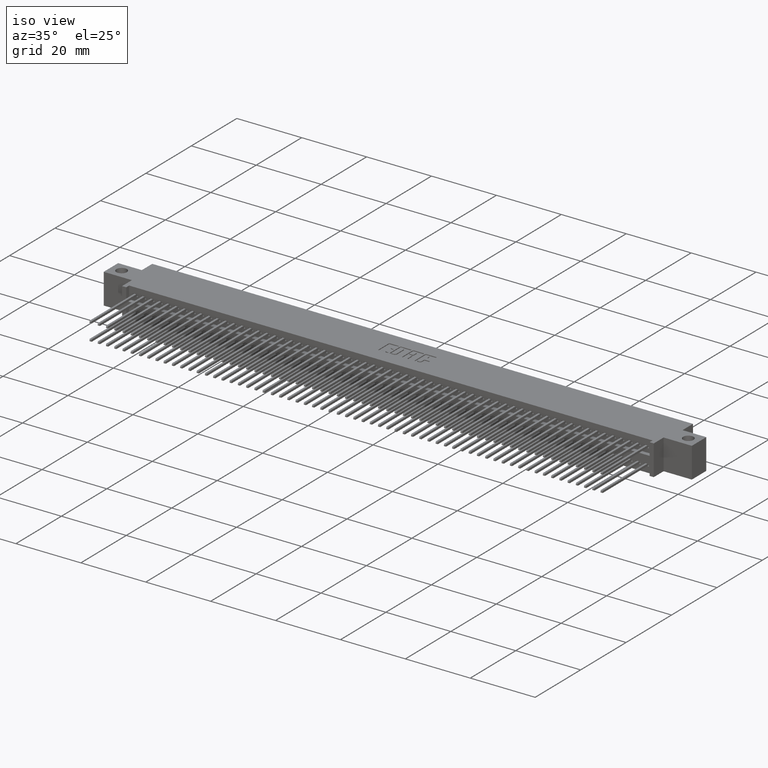
[diagram: clean part render]
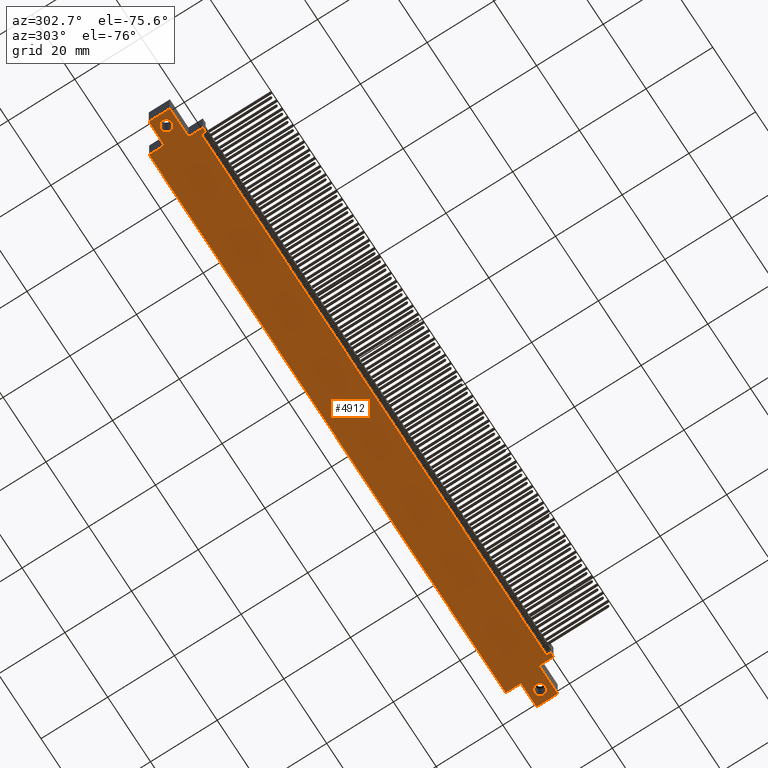
[diagram: tour spotlight — one face highlighted and labeled with its STEP entity id]
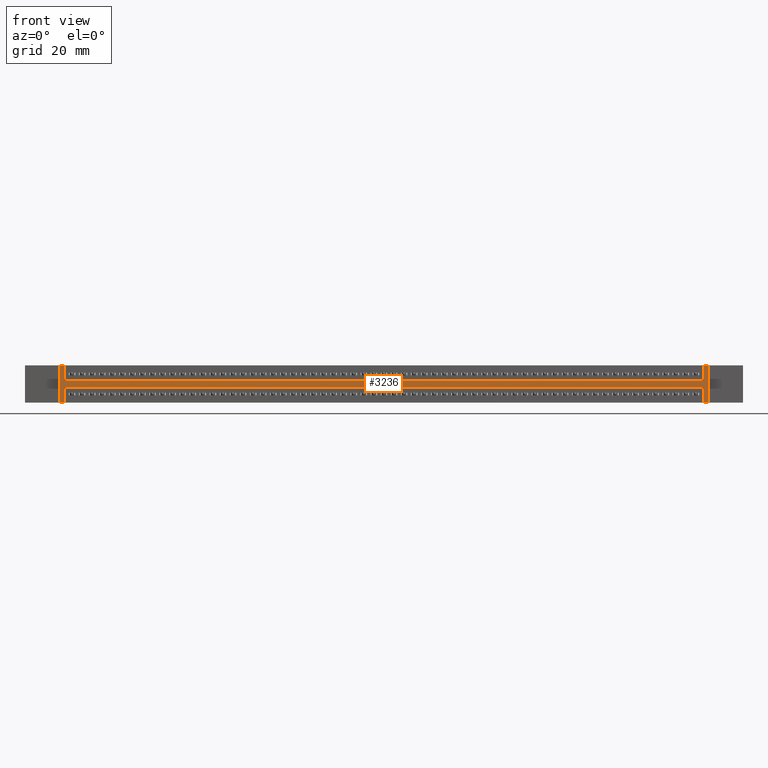
[diagram: tour spotlight — one face highlighted and labeled with its STEP entity id]
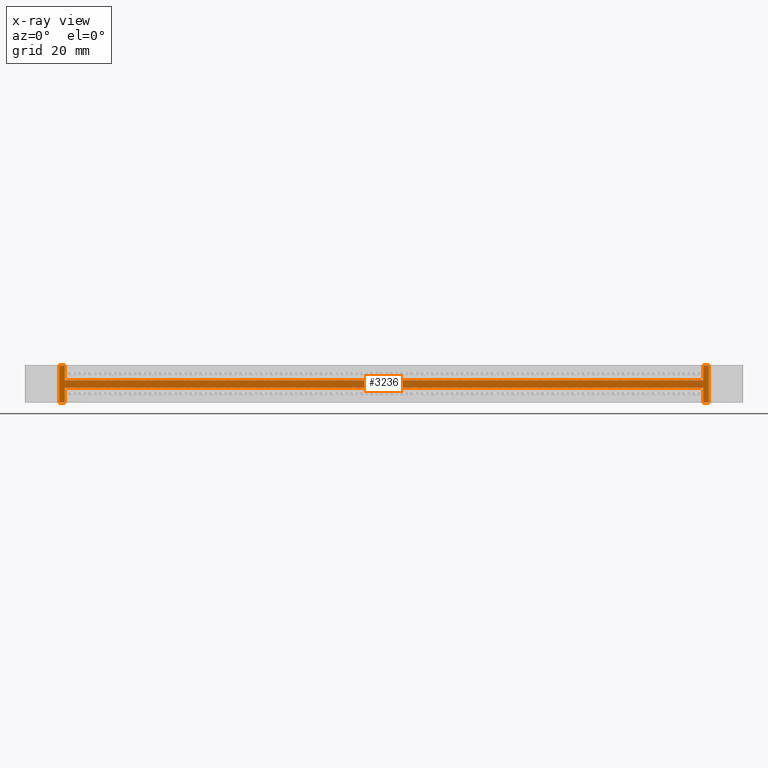
[diagram: x-ray of the same camera — body ghosted, this tour face saturated]
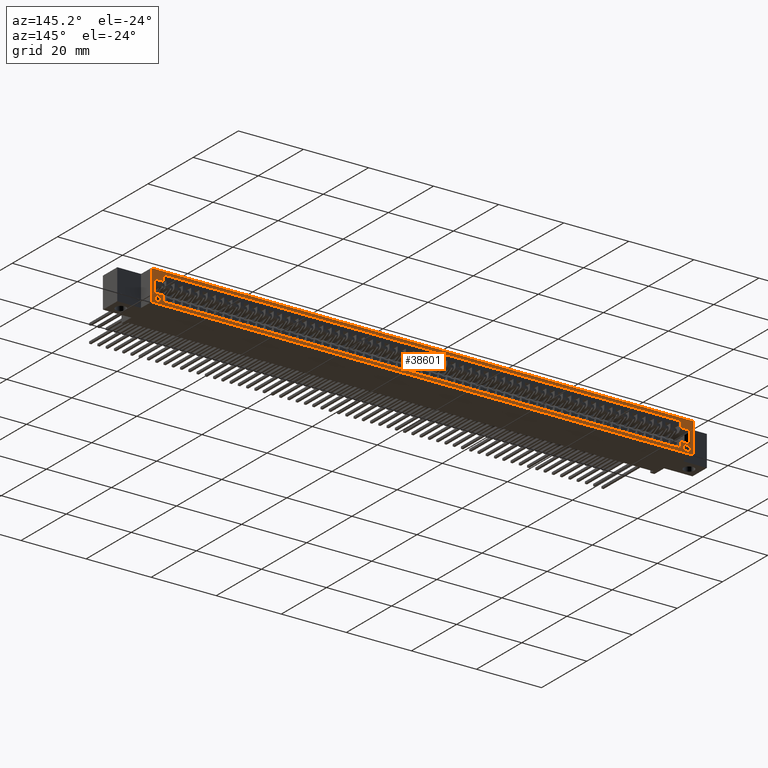
[diagram: tour spotlight — one face highlighted and labeled with its STEP entity id]
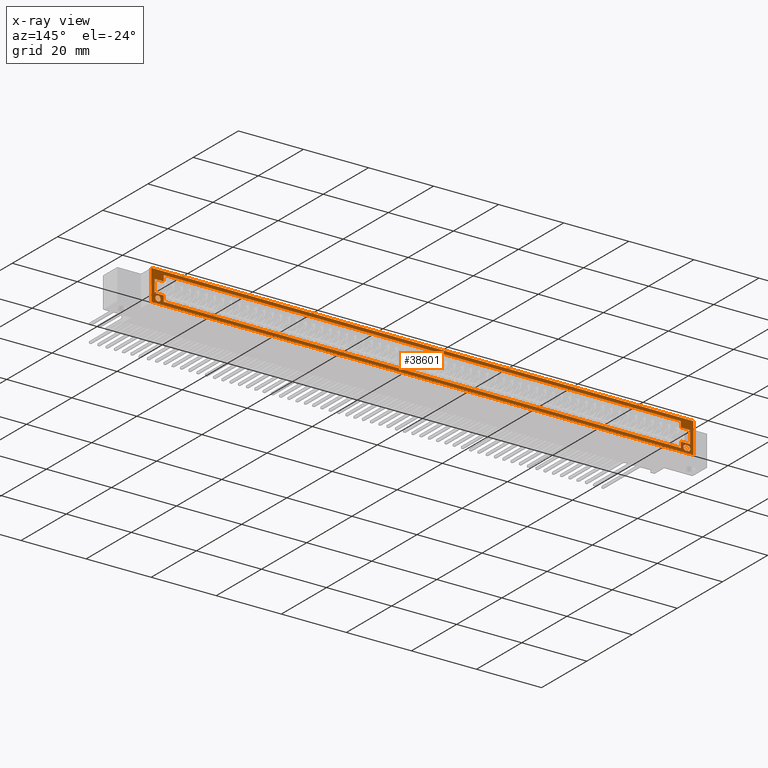
[diagram: x-ray of the same camera — body ghosted, this tour face saturated]
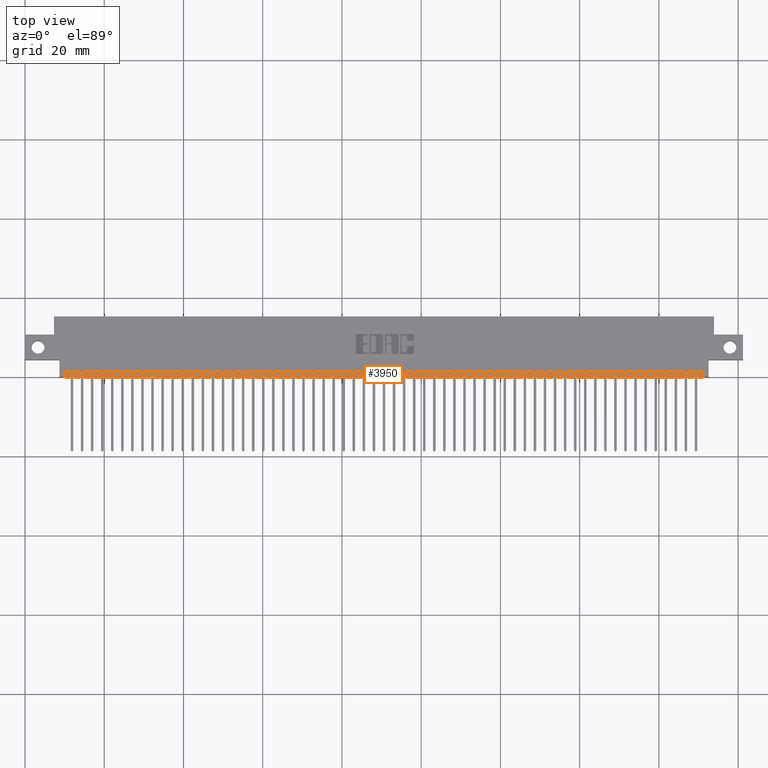
[diagram: tour spotlight — one face highlighted and labeled with its STEP entity id]
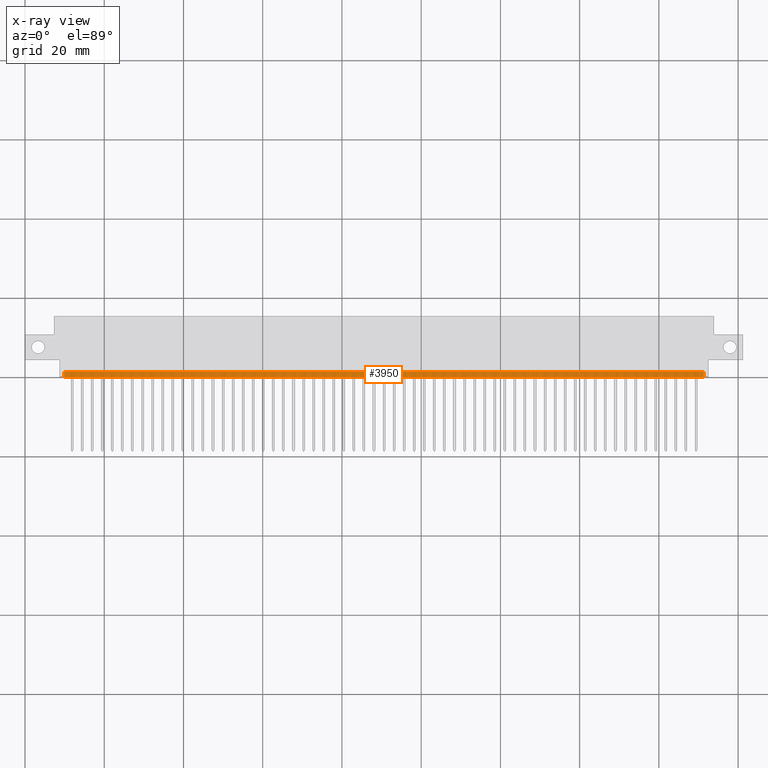
[diagram: x-ray of the same camera — body ghosted, this tour face saturated]
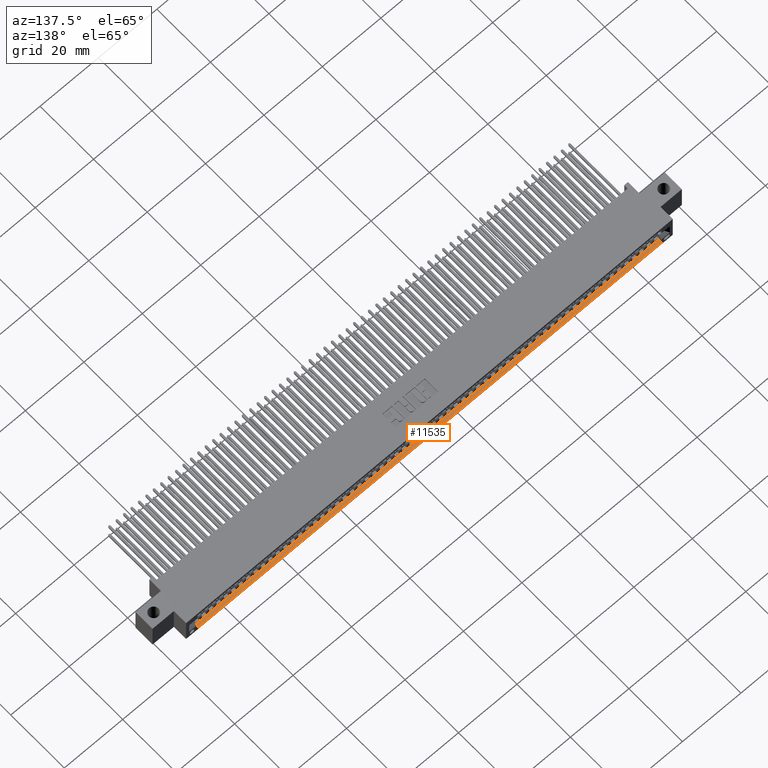
[diagram: tour spotlight — one face highlighted and labeled with its STEP entity id]
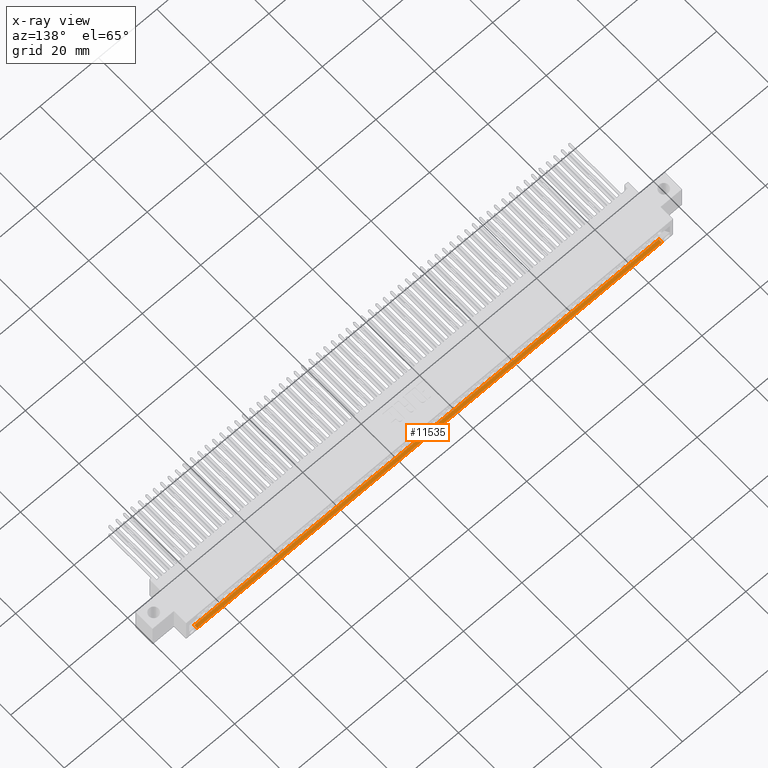
[diagram: x-ray of the same camera — body ghosted, this tour face saturated]
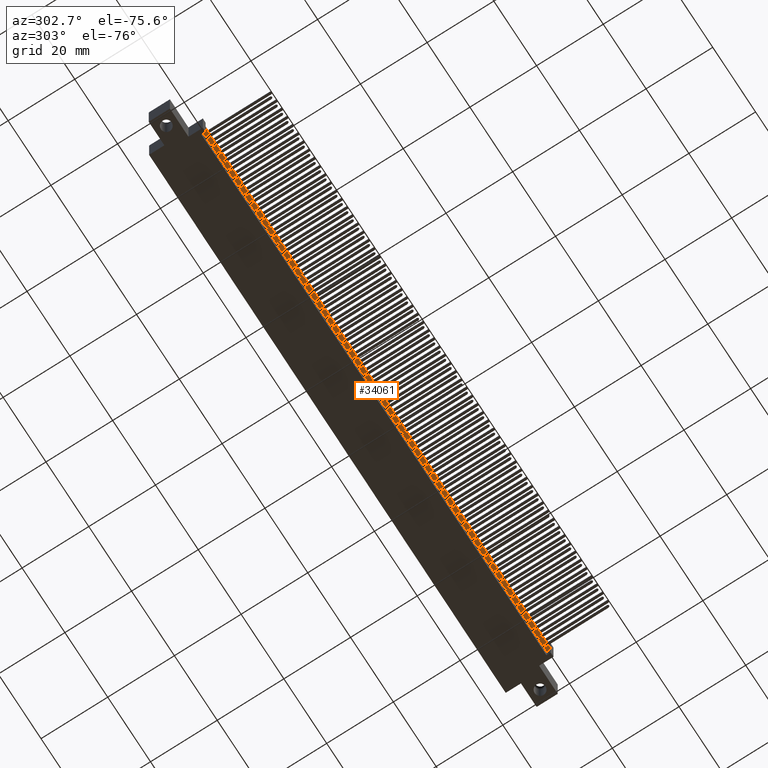
[diagram: tour spotlight — one face highlighted and labeled with its STEP entity id]
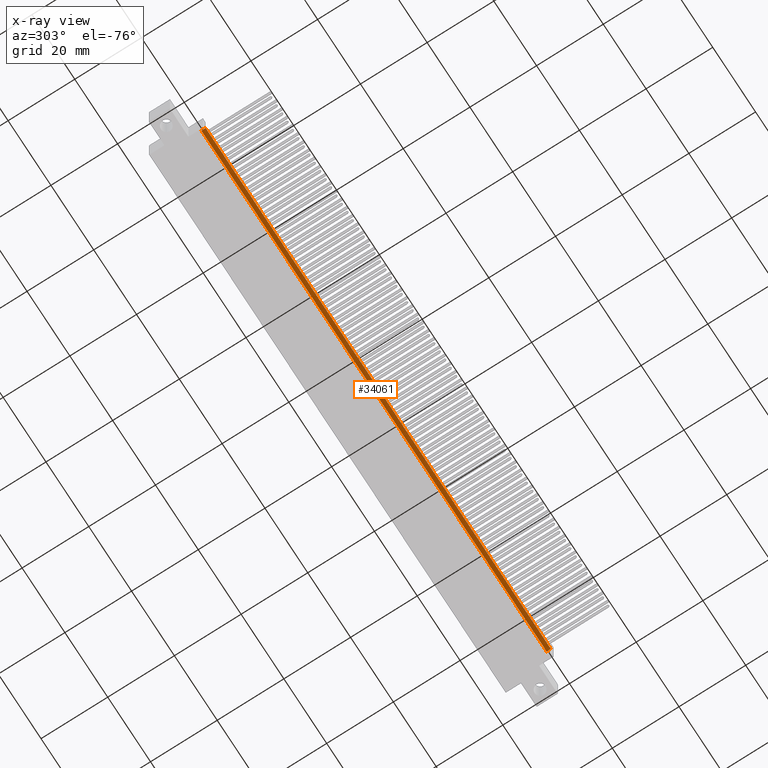
[diagram: x-ray of the same camera — body ghosted, this tour face saturated]
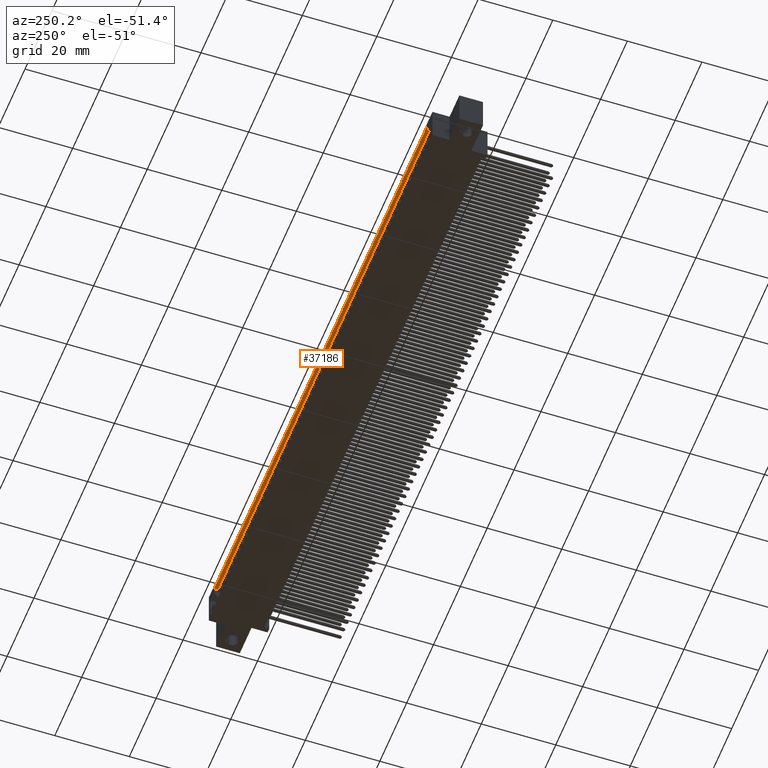
[diagram: tour spotlight — one face highlighted and labeled with its STEP entity id]
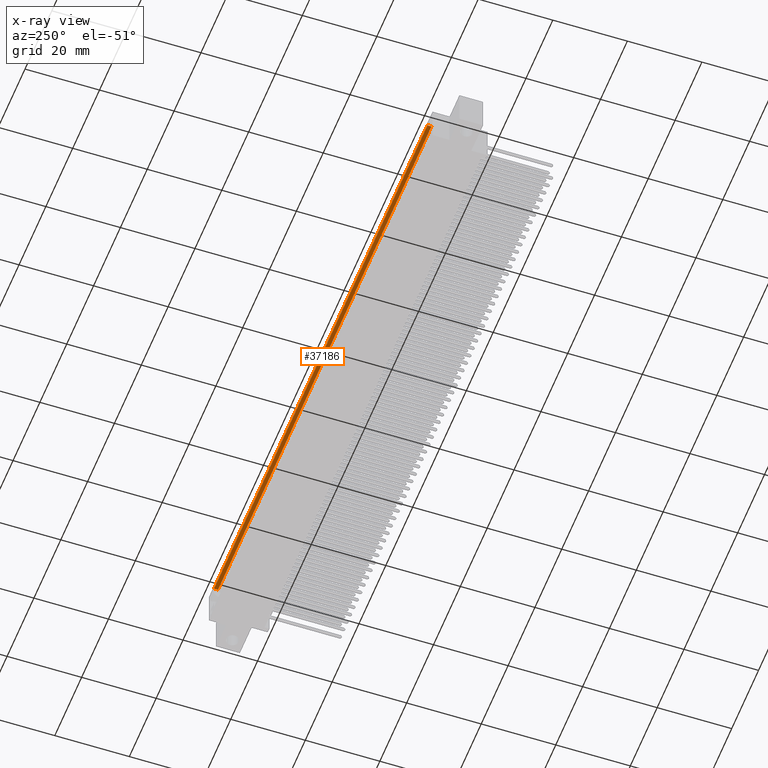
[diagram: x-ray of the same camera — body ghosted, this tour face saturated]
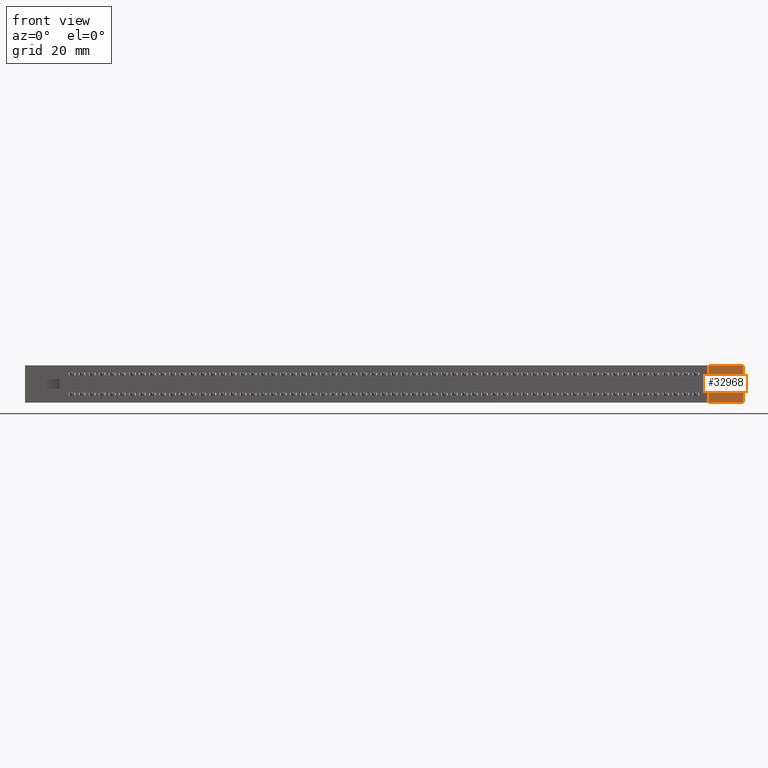
[diagram: tour spotlight — one face highlighted and labeled with its STEP entity id]
A machine part: a face-by-face anatomy tour. The part has 6430 B-rep faces; the first image is the clean iso view, then the 8 largest visible faces are spotlighted one at a time (largest first), each with its STEP entity span.

Face 1 — auxiliary view, entity #4912. In plain terms, the highlighted planar face has unit normal (-0, 0, 1).
Definition (entity closure, byte-faithful):
#61 = DIRECTION ( 'NONE',  ( -0.0000000000000000000, -1.000000000000000000, -0.0000000000000000000 ) ) ;
#454 = LINE ( 'NONE', #34408, #27525 ) ;
#608 = ORIENTED_EDGE ( 'NONE', *, *, #2161, .T. ) ;
#641 = CARTESIAN_POINT ( 'NONE',  ( 6.742500000000000600, 0.0000000000000000000, -0.3700000000000000000 ) ) ;
#691 = VECTOR ( 'NONE', #8816, 39.37007874015748100 ) ;
#926 = CARTESIAN_POINT ( 'NONE',  ( 0.0000000000000000000, 0.0000000000000000000, -0.3700000000000001600 ) ) ;
#1263 = CARTESIAN_POINT ( 'NONE',  ( 0.2874999999999999800, 0.4199999999999999800, -0.3700000000000001600 ) ) ;
#1388 = ORIENTED_EDGE ( 'NONE', *, *, #21554, .T. ) ;
#1584 = AXIS2_PLACEMENT_3D ( 'NONE', #28270, #3543, #39099 ) ;
#2161 = EDGE_CURVE ( 'NONE', #36492, #6581, #10871, .T. ) ;
#2870 = CARTESIAN_POINT ( 'NONE',  ( 6.792500000000000400, 0.1699999999999999800, -0.3699999999999992200 ) ) ;
#3543 = DIRECTION ( 'NONE',  ( 0.0000000000000000000, 0.0000000000000000000, 1.000000000000000000 ) ) ;
#4469 = ORIENTED_EDGE ( 'NONE', *, *, #6121, .F. ) ;
#4912 = ADVANCED_FACE ( 'NONE', ( #32066, #22480, #13998 ), #46418, .F. ) ;
#5058 = CARTESIAN_POINT ( 'NONE',  ( 7.135000000000000700, 0.4199999999999999800, -0.3700000000000000000 ) ) ;
#5511 = DIRECTION ( 'NONE',  ( -1.000000000000000000, 0.0000000000000000000, 0.0000000000000000000 ) ) ;
#5629 = CARTESIAN_POINT ( 'NONE',  ( 6.742500000000000600, 0.05000000000000000300, -0.3700000000000000000 ) ) ;
#6121 = EDGE_CURVE ( 'NONE', #11511, #37865, #32597, .T. ) ;
#6245 = VECTOR ( 'NONE', #43449, 39.37007874015748100 ) ;
#6323 = ORIENTED_EDGE ( 'NONE', *, *, #9205, .F. ) ;
#6537 = VERTEX_POINT ( 'NONE', #11775 ) ;
#6581 = VERTEX_POINT ( 'NONE', #12691 ) ;
#7011 = EDGE_CURVE ( 'NONE', #39623, #35433, #26796, .T. ) ;
#7390 = ORIENTED_EDGE ( 'NONE', *, *, #24820, .F. ) ;
#7426 = DIRECTION ( 'NONE',  ( -1.000000000000000000, -0.0000000000000000000, -0.0000000000000000000 ) ) ;
#7485 = VECTOR ( 'NONE', #28087, 39.37007874015748100 ) ;
#7515 = EDGE_CURVE ( 'NONE', #6537, #39623, #39874, .T. ) ;
#7752 = CARTESIAN_POINT ( 'NONE',  ( 0.3924999999999996800, 0.05000000000000000300, -0.3700000000000000000 ) ) ;
#7969 = CARTESIAN_POINT ( 'NONE',  ( 7.135000000000000700, 0.1699999999999999800, -0.3699999999999991100 ) ) ;
#8078 = LINE ( 'NONE', #33712, #38622 ) ;
#8816 = DIRECTION ( 'NONE',  ( -1.000000000000000000, 0.0000000000000000000, 3.800831991185067400E-015 ) ) ;
#9149 = ORIENTED_EDGE ( 'NONE', *, *, #15702, .T. ) ;
#9183 = AXIS2_PLACEMENT_3D ( 'NONE', #37754, #19556, #5511 ) ;
#9205 = EDGE_CURVE ( 'NONE', #6537, #11511, #17000, .T. ) ;
#10420 = DIRECTION ( 'NONE',  ( -1.000000000000000000, 0.0000000000000000000, 0.0000000000000000000 ) ) ;
#10569 = DIRECTION ( 'NONE',  ( 0.0000000000000000000, 0.0000000000000000000, 1.000000000000000000 ) ) ;
#10871 = LINE ( 'NONE', #2870, #7485 ) ;
#11511 = VERTEX_POINT ( 'NONE', #5629 ) ;
#11517 = ORIENTED_EDGE ( 'NONE', *, *, #37027, .T. ) ;
#11775 = CARTESIAN_POINT ( 'NONE',  ( 0.3924999999999996800, 0.05000000000000000300, -0.3700000000000000000 ) ) ;
#12691 = CARTESIAN_POINT ( 'NONE',  ( 6.792500000000000400, 0.0000000000000000000, -0.3699999999999992200 ) ) ;
#12926 = VECTOR ( 'NONE', #14188, 39.37007874015748100 ) ;
#13189 = EDGE_CURVE ( 'NONE', #35915, #35433, #20265, .T. ) ;
#13313 = CARTESIAN_POINT ( 'NONE',  ( 0.2874999999999999800, 0.4199999999999999800, -0.3700000000000001600 ) ) ;
#13396 = CIRCLE ( 'NONE', #9183, 0.06400000000000019600 ) ;
#13463 = DIRECTION ( 'NONE',  ( -0.0000000000000000000, 1.000000000000000000, -0.0000000000000000000 ) ) ;
#13496 = DIRECTION ( 'NONE',  ( -0.0000000000000000000, -1.000000000000000000, -0.0000000000000000000 ) ) ;
#13780 = DIRECTION ( 'NONE',  ( 1.000000000000000000, 0.0000000000000000000, 1.914399434943422300E-017 ) ) ;
#13998 = FACE_OUTER_BOUND ( 'NONE', #43941, .T. ) ;
#14188 = DIRECTION ( 'NONE',  ( -0.0000000000000000000, -1.000000000000000000, -0.0000000000000000000 ) ) ;
#14315 = ORIENTED_EDGE ( 'NONE', *, *, #13189, .F. ) ;
#14911 = DIRECTION ( 'NONE',  ( -1.000000000000000000, -0.0000000000000000000, -1.914399434943422000E-017 ) ) ;
#15182 = CARTESIAN_POINT ( 'NONE',  ( 6.941000000000001600, 0.2950000000000007600, -0.3700000000000001600 ) ) ;
#15412 = VECTOR ( 'NONE', #45840, 39.37007874015748100 ) ;
#15702 = EDGE_CURVE ( 'NONE', #29809, #28310, #16731, .T. ) ;
#16631 = EDGE_CURVE ( 'NONE', #36492, #30778, #37927, .T. ) ;
#16731 = CIRCLE ( 'NONE', #23964, 0.06400000000000019600 ) ;
#16909 = ORIENTED_EDGE ( 'NONE', *, *, #7011, .T. ) ;
#16917 = VECTOR ( 'NONE', #13496, 39.37007874015748100 ) ;
#17000 = LINE ( 'NONE', #7752, #44772 ) ;
#17381 = EDGE_CURVE ( 'NONE', #23742, #30778, #43006, .T. ) ;
#17427 = DIRECTION ( 'NONE',  ( -1.914399434943422300E-017, 0.0000000000000000000, 1.000000000000000000 ) ) ;
#17484 = ORIENTED_EDGE ( 'NONE', *, *, #36724, .F. ) ;
#18558 = EDGE_CURVE ( 'NONE', #42316, #35915, #454, .T. ) ;
#18681 = CARTESIAN_POINT ( 'NONE',  ( 0.0000000000000000000, 0.1699999999999999800, -0.3700000000000001600 ) ) ;
#19556 = DIRECTION ( 'NONE',  ( 0.0000000000000000000, 0.0000000000000000000, 1.000000000000000000 ) ) ;
#19811 = VECTOR ( 'NONE', #13463, 39.37007874015748100 ) ;
#20265 = LINE ( 'NONE', #28373, #12926 ) ;
#20479 = CARTESIAN_POINT ( 'NONE',  ( 7.069000000000001700, 0.2950000000000007600, -0.3700000000000001600 ) ) ;
#20564 = VECTOR ( 'NONE', #20826, 39.37007874015748100 ) ;
#20672 = DIRECTION ( 'NONE',  ( -1.000000000000000000, -0.0000000000000000000, -1.914399434943422000E-017 ) ) ;
#20826 = DIRECTION ( 'NONE',  ( -0.0000000000000000000, -1.000000000000000000, -0.0000000000000000000 ) ) ;
#21164 = CARTESIAN_POINT ( 'NONE',  ( 7.005000000000001700, 0.2950000000000007600, -0.3700000000000001600 ) ) ;
#21554 = EDGE_CURVE ( 'NONE', #6581, #37865, #43761, .T. ) ;
#22071 = ORIENTED_EDGE ( 'NONE', *, *, #7515, .T. ) ;
#22480 = FACE_BOUND ( 'NONE', #43000, .T. ) ;
#23742 = VERTEX_POINT ( 'NONE', #28898 ) ;
#23776 = EDGE_CURVE ( 'NONE', #28690, #35869, #33562, .T. ) ;
#23964 = AXIS2_PLACEMENT_3D ( 'NONE', #21164, #10569, #10420 ) ;
#24256 = LINE ( 'NONE', #25411, #29360 ) ;
#24400 = CARTESIAN_POINT ( 'NONE',  ( 0.1300000000000000000, 0.2949999999999999300, -0.3700000000000001600 ) ) ;
#24422 = ORIENTED_EDGE ( 'NONE', *, *, #16631, .F. ) ;
#24820 = EDGE_CURVE ( 'NONE', #41261, #44316, #34589, .T. ) ;
#25405 = ORIENTED_EDGE ( 'NONE', *, *, #17381, .T. ) ;
#25411 = CARTESIAN_POINT ( 'NONE',  ( 0.0000000000000000000, 0.4199999999999999800, -0.3700000000000001600 ) ) ;
#25462 = EDGE_CURVE ( 'NONE', #33142, #34774, #29410, .T. ) ;
#25643 = VECTOR ( 'NONE', #20672, 39.37007874015748100 ) ;
#25739 = CARTESIAN_POINT ( 'NONE',  ( 6.792500000000000400, 0.1699999999999999800, -0.3699999999999992200 ) ) ;
#26173 = CARTESIAN_POINT ( 'NONE',  ( 0.0000000000000000000, 0.4199999999999999800, -0.3700000000000001600 ) ) ;
#26572 = DIRECTION ( 'NONE',  ( -0.0000000000000000000, -1.000000000000000000, -0.0000000000000000000 ) ) ;
#26796 = LINE ( 'NONE', #926, #27941 ) ;
#27525 = VECTOR ( 'NONE', #45568, 39.37007874015748100 ) ;
#27847 = CARTESIAN_POINT ( 'NONE',  ( 7.135000000000000700, 0.5999999999999999800, -0.3700000000000000000 ) ) ;
#27941 = VECTOR ( 'NONE', #14911, 39.37007874015748100 ) ;
#28087 = DIRECTION ( 'NONE',  ( -0.0000000000000000000, -1.000000000000000000, -0.0000000000000000000 ) ) ;
#28108 = EDGE_CURVE ( 'NONE', #28310, #29809, #13396, .T. ) ;
#28270 = CARTESIAN_POINT ( 'NONE',  ( 0.1300000000000000000, 0.2949999999999999300, -0.3700000000000001600 ) ) ;
#28310 = VERTEX_POINT ( 'NONE', #20479 ) ;
#28373 = CARTESIAN_POINT ( 'NONE',  ( 0.3424999999999999700, 0.1699999999999999800, -0.3700000000000000000 ) ) ;
#28690 = VERTEX_POINT ( 'NONE', #41221 ) ;
#28898 = CARTESIAN_POINT ( 'NONE',  ( 7.135000000000000700, 0.4200000000000000400, -0.3700000000000000000 ) ) ;
#28965 = VECTOR ( 'NONE', #44755, 39.37007874015748100 ) ;
#29164 = VECTOR ( 'NONE', #61, 39.37007874015748100 ) ;
#29360 = VECTOR ( 'NONE', #7426, 39.37007874015748100 ) ;
#29410 = LINE ( 'NONE', #13313, #19811 ) ;
#29809 = VERTEX_POINT ( 'NONE', #15182 ) ;
#29973 = CARTESIAN_POINT ( 'NONE',  ( 0.0000000000000000000, 0.0000000000000000000, -0.3700000000000001600 ) ) ;
#30064 = AXIS2_PLACEMENT_3D ( 'NONE', #35253, #17427, #13780 ) ;
#30177 = CARTESIAN_POINT ( 'NONE',  ( 0.3424999999999999700, 0.1699999999999999800, -0.3700000000000000000 ) ) ;
#30778 = VERTEX_POINT ( 'NONE', #45115 ) ;
#31372 = CARTESIAN_POINT ( 'NONE',  ( 6.847500000000001000, 0.4199999999999999800, -0.3699999999999989400 ) ) ;
#31380 = DIRECTION ( 'NONE',  ( 1.000000000000000000, 0.0000000000000000000, 0.0000000000000000000 ) ) ;
#31831 = CARTESIAN_POINT ( 'NONE',  ( 6.742500000000000600, 0.05000000000000000300, -0.3700000000000000000 ) ) ;
#32066 = FACE_BOUND ( 'NONE', #37266, .T. ) ;
#32189 = CARTESIAN_POINT ( 'NONE',  ( 0.3924999999999996800, 0.05000000000000000300, -0.3700000000000000000 ) ) ;
#32310 = CARTESIAN_POINT ( 'NONE',  ( 0.3924999999999996800, 0.0000000000000000000, -0.3700000000000000000 ) ) ;
#32597 = LINE ( 'NONE', #31831, #29164 ) ;
#32876 = EDGE_CURVE ( 'NONE', #44316, #34774, #35237, .T. ) ;
#33142 = VERTEX_POINT ( 'NONE', #1263 ) ;
#33332 = AXIS2_PLACEMENT_3D ( 'NONE', #24400, #42519, #31380 ) ;
#33562 = CIRCLE ( 'NONE', #1584, 0.06399999999999997400 ) ;
#33712 = CARTESIAN_POINT ( 'NONE',  ( 0.0000000000000000000, 0.5999999999999999800, -0.3700000000000001600 ) ) ;
#34408 = CARTESIAN_POINT ( 'NONE',  ( 0.0000000000000000000, 0.1699999999999999800, -0.3700000000000001600 ) ) ;
#34589 = LINE ( 'NONE', #41574, #15412 ) ;
#34774 = VERTEX_POINT ( 'NONE', #39027 ) ;
#35122 = ORIENTED_EDGE ( 'NONE', *, *, #36634, .F. ) ;
#35189 = ORIENTED_EDGE ( 'NONE', *, *, #25462, .T. ) ;
#35237 = LINE ( 'NONE', #46059, #25643 ) ;
#35253 = CARTESIAN_POINT ( 'NONE',  ( 0.0000000000000000000, 0.5999999999999999800, -0.3700000000000001600 ) ) ;
#35433 = VERTEX_POINT ( 'NONE', #42935 ) ;
#35869 = VERTEX_POINT ( 'NONE', #37804 ) ;
#35915 = VERTEX_POINT ( 'NONE', #30177 ) ;
#36492 = VERTEX_POINT ( 'NONE', #25739 ) ;
#36634 = EDGE_CURVE ( 'NONE', #33142, #38747, #24256, .T. ) ;
#36724 = EDGE_CURVE ( 'NONE', #23742, #41261, #46448, .T. ) ;
#37027 = EDGE_CURVE ( 'NONE', #35869, #28690, #38450, .T. ) ;
#37266 = EDGE_LOOP ( 'NONE', ( #39881, #9149 ) ) ;
#37397 = ORIENTED_EDGE ( 'NONE', *, *, #18558, .F. ) ;
#37754 = CARTESIAN_POINT ( 'NONE',  ( 7.005000000000001700, 0.2950000000000007600, -0.3700000000000001600 ) ) ;
#37804 = CARTESIAN_POINT ( 'NONE',  ( 0.1939999999999999800, 0.2949999999999999300, -0.3700000000000001600 ) ) ;
#37865 = VERTEX_POINT ( 'NONE', #641 ) ;
#37927 = LINE ( 'NONE', #7969, #6245 ) ;
#38450 = CIRCLE ( 'NONE', #33332, 0.06399999999999997400 ) ;
#38622 = VECTOR ( 'NONE', #26572, 39.37007874015748100 ) ;
#38747 = VERTEX_POINT ( 'NONE', #26173 ) ;
#39027 = CARTESIAN_POINT ( 'NONE',  ( 0.2874999999999999800, 0.5999999999999999800, -0.3700000000000001600 ) ) ;
#39099 = DIRECTION ( 'NONE',  ( 1.000000000000000000, 0.0000000000000000000, 0.0000000000000000000 ) ) ;
#39329 = ORIENTED_EDGE ( 'NONE', *, *, #32876, .F. ) ;
#39623 = VERTEX_POINT ( 'NONE', #32310 ) ;
#39874 = LINE ( 'NONE', #32189, #20564 ) ;
#39881 = ORIENTED_EDGE ( 'NONE', *, *, #28108, .T. ) ;
#41221 = CARTESIAN_POINT ( 'NONE',  ( 0.06600000000000003100, 0.2949999999999999300, -0.3700000000000001600 ) ) ;
#41261 = VERTEX_POINT ( 'NONE', #31372 ) ;
#41574 = CARTESIAN_POINT ( 'NONE',  ( 6.847500000000001000, 0.4199999999999999800, -0.3699999999999989400 ) ) ;
#42092 = ORIENTED_EDGE ( 'NONE', *, *, #46562, .F. ) ;
#42316 = VERTEX_POINT ( 'NONE', #18681 ) ;
#42519 = DIRECTION ( 'NONE',  ( 0.0000000000000000000, 0.0000000000000000000, 1.000000000000000000 ) ) ;
#42935 = CARTESIAN_POINT ( 'NONE',  ( 0.3424999999999999700, 0.0000000000000000000, -0.3700000000000001600 ) ) ;
#43000 = EDGE_LOOP ( 'NONE', ( #11517, #43635 ) ) ;
#43006 = LINE ( 'NONE', #27847, #16917 ) ;
#43449 = DIRECTION ( 'NONE',  ( 1.000000000000000000, -0.0000000000000000000, 1.994049630411871400E-016 ) ) ;
#43635 = ORIENTED_EDGE ( 'NONE', *, *, #23776, .T. ) ;
#43683 = DIRECTION ( 'NONE',  ( 1.000000000000000000, 0.0000000000000000000, 0.0000000000000000000 ) ) ;
#43761 = LINE ( 'NONE', #29973, #28965 ) ;
#43941 = EDGE_LOOP ( 'NONE', ( #24422, #608, #1388, #4469, #6323, #22071, #16909, #14315, #37397, #42092, #35122, #35189, #39329, #7390, #17484, #25405 ) ) ;
#44103 = CARTESIAN_POINT ( 'NONE',  ( 6.847500000000001000, 0.5999999999999999800, -0.3699999999999989400 ) ) ;
#44316 = VERTEX_POINT ( 'NONE', #44103 ) ;
#44755 = DIRECTION ( 'NONE',  ( -1.000000000000000000, -0.0000000000000000000, -1.914399434943422000E-017 ) ) ;
#44772 = VECTOR ( 'NONE', #43683, 39.37007874015748100 ) ;
#45115 = CARTESIAN_POINT ( 'NONE',  ( 7.135000000000000700, 0.1699999999999999800, -0.3699999999999991100 ) ) ;
#45568 = DIRECTION ( 'NONE',  ( 1.000000000000000000, 0.0000000000000000000, 3.988099260823742800E-016 ) ) ;
#45840 = DIRECTION ( 'NONE',  ( -0.0000000000000000000, 1.000000000000000000, -0.0000000000000000000 ) ) ;
#46059 = CARTESIAN_POINT ( 'NONE',  ( 0.0000000000000000000, 0.5999999999999999800, -0.3700000000000001600 ) ) ;
#46418 = PLANE ( 'NONE',  #30064 ) ;
#46448 = LINE ( 'NONE', #5058, #691 ) ;
#46562 = EDGE_CURVE ( 'NONE', #38747, #42316, #8078, .T. ) ;

Face 2 — front view, entity #3236. An x-ray twin of the same camera follows (body ghosted, this face saturated) — the face is partly hidden behind the body. In plain terms, the highlighted planar face has unit normal (0, -1, 0).
Definition (entity closure, byte-faithful):
#125 = ORIENTED_EDGE ( 'NONE', *, *, #7011, .F. ) ;
#561 = LINE ( 'NONE', #4020, #46317 ) ;
#641 = CARTESIAN_POINT ( 'NONE',  ( 6.742500000000000600, 0.0000000000000000000, -0.3700000000000000000 ) ) ;
#926 = CARTESIAN_POINT ( 'NONE',  ( 0.0000000000000000000, 0.0000000000000000000, -0.3700000000000001600 ) ) ;
#1810 = VERTEX_POINT ( 'NONE', #21998 ) ;
#2277 = EDGE_CURVE ( 'NONE', #35433, #1810, #34566, .T. ) ;
#3236 = ADVANCED_FACE ( 'NONE', ( #4650 ), #12257, .T. ) ;
#3724 = EDGE_CURVE ( 'NONE', #15878, #6581, #34416, .T. ) ;
#3987 = DIRECTION ( 'NONE',  ( -0.0000000000000000000, -0.0000000000000000000, 1.000000000000000000 ) ) ;
#4020 = CARTESIAN_POINT ( 'NONE',  ( 0.3924999999999996800, 0.0000000000000000000, -0.3700000000000000000 ) ) ;
#4650 = FACE_OUTER_BOUND ( 'NONE', #13465, .T. ) ;
#4765 = EDGE_CURVE ( 'NONE', #37246, #41425, #21346, .T. ) ;
#5353 = LINE ( 'NONE', #39451, #29614 ) ;
#6007 = CARTESIAN_POINT ( 'NONE',  ( 0.3924999999999996800, 0.0000000000000000000, 0.0000000000000000000 ) ) ;
#6385 = DIRECTION ( 'NONE',  ( 0.0000000000000000000, 0.0000000000000000000, 1.000000000000000000 ) ) ;
#6581 = VERTEX_POINT ( 'NONE', #12691 ) ;
#7011 = EDGE_CURVE ( 'NONE', #39623, #35433, #26796, .T. ) ;
#7719 = CARTESIAN_POINT ( 'NONE',  ( 6.792500000000000400, 0.0000000000000000000, 0.0000000000000000000 ) ) ;
#8550 = AXIS2_PLACEMENT_3D ( 'NONE', #41857, #12397, #16218 ) ;
#8994 = LINE ( 'NONE', #13022, #11271 ) ;
#10187 = CARTESIAN_POINT ( 'NONE',  ( 0.3924999999999996800, 0.0000000000000000000, -0.2200000000000000000 ) ) ;
#10721 = EDGE_CURVE ( 'NONE', #26484, #37246, #15505, .T. ) ;
#11048 = EDGE_CURVE ( 'NONE', #41425, #15878, #31229, .T. ) ;
#11271 = VECTOR ( 'NONE', #6385, 39.37007874015748100 ) ;
#11484 = CARTESIAN_POINT ( 'NONE',  ( 6.742500000000000600, 0.0000000000000000000, -0.1499999999999999900 ) ) ;
#12071 = ORIENTED_EDGE ( 'NONE', *, *, #10721, .F. ) ;
#12257 = PLANE ( 'NONE',  #8550 ) ;
#12397 = DIRECTION ( 'NONE',  ( 0.0000000000000000000, -1.000000000000000000, 0.0000000000000000000 ) ) ;
#12533 = VECTOR ( 'NONE', #27945, 39.37007874015748100 ) ;
#12691 = CARTESIAN_POINT ( 'NONE',  ( 6.792500000000000400, 0.0000000000000000000, -0.3699999999999992200 ) ) ;
#12826 = EDGE_CURVE ( 'NONE', #1810, #23128, #27046, .T. ) ;
#13022 = CARTESIAN_POINT ( 'NONE',  ( 6.742500000000000600, 0.0000000000000000000, -0.3700000000000000000 ) ) ;
#13294 = CARTESIAN_POINT ( 'NONE',  ( 6.742500000000000600, 0.0000000000000000000, -0.2200000000000000000 ) ) ;
#13435 = CARTESIAN_POINT ( 'NONE',  ( 0.3924999999999996800, 0.0000000000000000000, -0.2200000000000000000 ) ) ;
#13465 = EDGE_LOOP ( 'NONE', ( #38569, #40827, #36310, #12071, #17931, #13510, #33112, #125, #23150, #23033, #20269, #42402 ) ) ;
#13510 = ORIENTED_EDGE ( 'NONE', *, *, #12826, .F. ) ;
#14911 = DIRECTION ( 'NONE',  ( -1.000000000000000000, -0.0000000000000000000, -1.914399434943422000E-017 ) ) ;
#15505 = LINE ( 'NONE', #26243, #32428 ) ;
#15878 = VERTEX_POINT ( 'NONE', #7719 ) ;
#16218 = DIRECTION ( 'NONE',  ( 0.0000000000000000000, -0.0000000000000000000, -1.000000000000000000 ) ) ;
#17931 = ORIENTED_EDGE ( 'NONE', *, *, #40149, .F. ) ;
#19948 = VERTEX_POINT ( 'NONE', #13294 ) ;
#20269 = ORIENTED_EDGE ( 'NONE', *, *, #26967, .F. ) ;
#20416 = VECTOR ( 'NONE', #3987, 39.37007874015748100 ) ;
#21346 = LINE ( 'NONE', #23553, #28658 ) ;
#21554 = EDGE_CURVE ( 'NONE', #6581, #37865, #43761, .T. ) ;
#21998 = CARTESIAN_POINT ( 'NONE',  ( 0.3424999999999999700, 0.0000000000000000000, 0.0000000000000000000 ) ) ;
#22080 = CARTESIAN_POINT ( 'NONE',  ( 0.3924999999999996800, 0.0000000000000000000, -0.1499999999999999900 ) ) ;
#23033 = ORIENTED_EDGE ( 'NONE', *, *, #34106, .F. ) ;
#23128 = VERTEX_POINT ( 'NONE', #6007 ) ;
#23150 = ORIENTED_EDGE ( 'NONE', *, *, #30502, .F. ) ;
#23321 = DIRECTION ( 'NONE',  ( 1.000000000000000000, 0.0000000000000000000, 0.0000000000000000000 ) ) ;
#23553 = CARTESIAN_POINT ( 'NONE',  ( 6.742500000000000600, 0.0000000000000000000, 0.0000000000000000000 ) ) ;
#24987 = VERTEX_POINT ( 'NONE', #10187 ) ;
#26243 = CARTESIAN_POINT ( 'NONE',  ( 0.3924999999999996800, 0.0000000000000000000, -0.1499999999999999900 ) ) ;
#26246 = DIRECTION ( 'NONE',  ( 0.0000000000000000000, 0.0000000000000000000, -1.000000000000000000 ) ) ;
#26484 = VERTEX_POINT ( 'NONE', #22080 ) ;
#26796 = LINE ( 'NONE', #926, #27941 ) ;
#26967 = EDGE_CURVE ( 'NONE', #37865, #19948, #8994, .T. ) ;
#27046 = LINE ( 'NONE', #34557, #33876 ) ;
#27941 = VECTOR ( 'NONE', #14911, 39.37007874015748100 ) ;
#27945 = DIRECTION ( 'NONE',  ( -1.000000000000000000, -0.0000000000000000000, -0.0000000000000000000 ) ) ;
#28658 = VECTOR ( 'NONE', #34630, 39.37007874015748100 ) ;
#28965 = VECTOR ( 'NONE', #44755, 39.37007874015748100 ) ;
#29477 = LINE ( 'NONE', #13435, #12533 ) ;
#29614 = VECTOR ( 'NONE', #35430, 39.37007874015748100 ) ;
#29973 = CARTESIAN_POINT ( 'NONE',  ( 0.0000000000000000000, 0.0000000000000000000, -0.3700000000000001600 ) ) ;
#30502 = EDGE_CURVE ( 'NONE', #24987, #39623, #561, .T. ) ;
#31229 = LINE ( 'NONE', #41426, #39248 ) ;
#32310 = CARTESIAN_POINT ( 'NONE',  ( 0.3924999999999996800, 0.0000000000000000000, -0.3700000000000000000 ) ) ;
#32428 = VECTOR ( 'NONE', #34392, 39.37007874015748100 ) ;
#33112 = ORIENTED_EDGE ( 'NONE', *, *, #2277, .F. ) ;
#33876 = VECTOR ( 'NONE', #38244, 39.37007874015748100 ) ;
#34106 = EDGE_CURVE ( 'NONE', #19948, #24987, #29477, .T. ) ;
#34392 = DIRECTION ( 'NONE',  ( 1.000000000000000000, 0.0000000000000000000, 0.0000000000000000000 ) ) ;
#34416 = LINE ( 'NONE', #44983, #43591 ) ;
#34557 = CARTESIAN_POINT ( 'NONE',  ( 0.0000000000000000000, 0.0000000000000000000, 0.0000000000000000000 ) ) ;
#34566 = LINE ( 'NONE', #39866, #20416 ) ;
#34630 = DIRECTION ( 'NONE',  ( -0.0000000000000000000, -0.0000000000000000000, 1.000000000000000000 ) ) ;
#35430 = DIRECTION ( 'NONE',  ( 0.0000000000000000000, 0.0000000000000000000, -1.000000000000000000 ) ) ;
#35433 = VERTEX_POINT ( 'NONE', #42935 ) ;
#36310 = ORIENTED_EDGE ( 'NONE', *, *, #4765, .F. ) ;
#37246 = VERTEX_POINT ( 'NONE', #11484 ) ;
#37865 = VERTEX_POINT ( 'NONE', #641 ) ;
#38244 = DIRECTION ( 'NONE',  ( 1.000000000000000000, 0.0000000000000000000, 0.0000000000000000000 ) ) ;
#38569 = ORIENTED_EDGE ( 'NONE', *, *, #3724, .F. ) ;
#39248 = VECTOR ( 'NONE', #23321, 39.37007874015748100 ) ;
#39451 = CARTESIAN_POINT ( 'NONE',  ( 0.3924999999999996800, 0.0000000000000000000, 0.0000000000000000000 ) ) ;
#39623 = VERTEX_POINT ( 'NONE', #32310 ) ;
#39866 = CARTESIAN_POINT ( 'NONE',  ( 0.3424999999999999700, 0.0000000000000000000, 0.0000000000000000000 ) ) ;
#40149 = EDGE_CURVE ( 'NONE', #23128, #26484, #5353, .T. ) ;
#40827 = ORIENTED_EDGE ( 'NONE', *, *, #11048, .F. ) ;
#41425 = VERTEX_POINT ( 'NONE', #42836 ) ;
#41426 = CARTESIAN_POINT ( 'NONE',  ( 0.0000000000000000000, 0.0000000000000000000, 0.0000000000000000000 ) ) ;
#41857 = CARTESIAN_POINT ( 'NONE',  ( 0.0000000000000000000, 0.0000000000000000000, -0.3700000000000001600 ) ) ;
#42402 = ORIENTED_EDGE ( 'NONE', *, *, #21554, .F. ) ;
#42836 = CARTESIAN_POINT ( 'NONE',  ( 6.742500000000000600, 0.0000000000000000000, 0.0000000000000000000 ) ) ;
#42935 = CARTESIAN_POINT ( 'NONE',  ( 0.3424999999999999700, 0.0000000000000000000, -0.3700000000000001600 ) ) ;
#43549 = DIRECTION ( 'NONE',  ( -0.0000000000000000000, -0.0000000000000000000, -1.000000000000000000 ) ) ;
#43591 = VECTOR ( 'NONE', #26246, 39.37007874015748100 ) ;
#43761 = LINE ( 'NONE', #29973, #28965 ) ;
#44755 = DIRECTION ( 'NONE',  ( -1.000000000000000000, -0.0000000000000000000, -1.914399434943422000E-017 ) ) ;
#44983 = CARTESIAN_POINT ( 'NONE',  ( 6.792500000000000400, 0.0000000000000000000, 7.898971854500427700E-016 ) ) ;
#46317 = VECTOR ( 'NONE', #43549, 39.37007874015748100 ) ;

Face 3 — auxiliary view, entity #38601. An x-ray twin of the same camera follows (body ghosted, this face saturated) — the face is partly hidden behind the body. In plain terms, the highlighted planar face has unit normal (0, -1, 0).
Definition (entity closure, byte-faithful):
#109 = DIRECTION ( 'NONE',  ( 0.0000000000000000000, 0.0000000000000000000, 1.000000000000000000 ) ) ;
#245 = VERTEX_POINT ( 'NONE', #17225 ) ;
#374 = EDGE_CURVE ( 'NONE', #17036, #42630, #46701, .T. ) ;
#886 = DIRECTION ( 'NONE',  ( 0.0000000000000000000, -0.0000000000000000000, -1.000000000000000000 ) ) ;
#1549 = VERTEX_POINT ( 'NONE', #13336 ) ;
#1768 = CARTESIAN_POINT ( 'NONE',  ( 0.4374999999999998900, 0.5999999999999999800, -0.1089999999999994000 ) ) ;
#1887 = CARTESIAN_POINT ( 'NONE',  ( 0.3784999999999999500, 0.5999999999999999800, -0.3130000000000000600 ) ) ;
#1955 = ORIENTED_EDGE ( 'NONE', *, *, #374, .F. ) ;
#1970 = EDGE_CURVE ( 'NONE', #13777, #245, #30608, .T. ) ;
#2279 = CARTESIAN_POINT ( 'NONE',  ( 0.0000000000000000000, 0.5999999999999999800, -0.2610000000000007300 ) ) ;
#2339 = EDGE_CURVE ( 'NONE', #25330, #20058, #24327, .T. ) ;
#2403 = ORIENTED_EDGE ( 'NONE', *, *, #31533, .F. ) ;
#2413 = EDGE_CURVE ( 'NONE', #1549, #23473, #23792, .T. ) ;
#2596 = LINE ( 'NONE', #24272, #6497 ) ;
#2903 = CARTESIAN_POINT ( 'NONE',  ( 0.3564999999999999800, 0.5999999999999999800, -0.3440000000000000800 ) ) ;
#2908 = DIRECTION ( 'NONE',  ( 0.0000000000000000000, 0.0000000000000000000, 1.000000000000000000 ) ) ;
#2914 = DIRECTION ( 'NONE',  ( 0.0000000000000000000, 0.0000000000000000000, -1.000000000000000000 ) ) ;
#2970 = VECTOR ( 'NONE', #15996, 39.37007874015748100 ) ;
#3267 = VERTEX_POINT ( 'NONE', #10018 ) ;
#3277 = CARTESIAN_POINT ( 'NONE',  ( 6.767500000000000100, 0.5999999999999999800, -0.3130000000000000600 ) ) ;
#3532 = CARTESIAN_POINT ( 'NONE',  ( 0.4375000000000010000, 0.5999999999999999800, -0.3310000000000007400 ) ) ;
#3561 = CARTESIAN_POINT ( 'NONE',  ( 0.4374999999999998900, 0.5999999999999999800, -0.2974999999999999900 ) ) ;
#3796 = CARTESIAN_POINT ( 'NONE',  ( 0.3784999999999999500, 0.5999999999999999800, -0.2820000000000000300 ) ) ;
#3824 = CARTESIAN_POINT ( 'NONE',  ( 0.3564999999999999800, 0.5999999999999999800, -0.3130000000000000600 ) ) ;
#3836 = FACE_OUTER_BOUND ( 'NONE', #29985, .T. ) ;
#4278 = LINE ( 'NONE', #7850, #46167 ) ;
#4953 = EDGE_CURVE ( 'NONE', #6611, #245, #41765, .T. ) ;
#5285 = ORIENTED_EDGE ( 'NONE', *, *, #2339, .F. ) ;
#5308 = DIRECTION ( 'NONE',  ( 0.0000000000000000000, 0.0000000000000000000, 1.000000000000000000 ) ) ;
#5679 = ORIENTED_EDGE ( 'NONE', *, *, #6785, .T. ) ;
#6332 = EDGE_CURVE ( 'NONE', #16451, #34774, #38253, .T. ) ;
#6497 = VECTOR ( 'NONE', #12951, 39.37007874015748100 ) ;
#6611 = VERTEX_POINT ( 'NONE', #27352 ) ;
#6785 = EDGE_CURVE ( 'NONE', #27642, #36163, #24573, .T. ) ;
#6848 = CARTESIAN_POINT ( 'NONE',  ( 0.4375000000000010000, 0.5999999999999999800, -0.03900000000000072900 ) ) ;
#7127 = ORIENTED_EDGE ( 'NONE', *, *, #4953, .T. ) ;
#7518 = EDGE_LOOP ( 'NONE', ( #28338, #5285, #46126, #17948, #39957, #7708, #7127, #15533, #18727, #8675, #5679, #11051 ) ) ;
#7708 = ORIENTED_EDGE ( 'NONE', *, *, #44847, .T. ) ;
#7850 = CARTESIAN_POINT ( 'NONE',  ( 6.697500000000001600, 0.5999999999999999800, -0.2974999999999998800 ) ) ;
#7888 = CARTESIAN_POINT ( 'NONE',  ( 6.767500000000000100, 0.5999999999999999800, -0.3130000000000000600 ) ) ;
#8032 = LINE ( 'NONE', #17431, #19892 ) ;
#8675 = ORIENTED_EDGE ( 'NONE', *, *, #36709, .T. ) ;
#8775 = ORIENTED_EDGE ( 'NONE', *, *, #36649, .T. ) ;
#9402 = FACE_BOUND ( 'NONE', #7518, .T. ) ;
#9793 = DIRECTION ( 'NONE',  ( 1.000000000000000000, 0.0000000000000000000, 0.0000000000000000000 ) ) ;
#9956 = EDGE_CURVE ( 'NONE', #25330, #44250, #4278, .T. ) ;
#10018 = CARTESIAN_POINT ( 'NONE',  ( 0.3784999999999999500, 0.5999999999999999800, -0.3440000000000000800 ) ) ;
#10467 = EDGE_LOOP ( 'NONE', ( #25061, #39907 ) ) ;
#10934 = AXIS2_PLACEMENT_3D ( 'NONE', #1887, #38042, #38349 ) ;
#11005 = VECTOR ( 'NONE', #5308, 39.37007874015748100 ) ;
#11051 = ORIENTED_EDGE ( 'NONE', *, *, #21120, .T. ) ;
#11056 = DIRECTION ( 'NONE',  ( 0.0000000000000000000, -1.000000000000000000, 0.0000000000000000000 ) ) ;
#11243 = CARTESIAN_POINT ( 'NONE',  ( 6.847499999999999300, 0.5999999999999999800, 0.0000000000000000000 ) ) ;
#11578 = EDGE_CURVE ( 'NONE', #37103, #3267, #36294, .T. ) ;
#12733 = VECTOR ( 'NONE', #2914, 39.37007874015748100 ) ;
#12862 = DIRECTION ( 'NONE',  ( 1.000000000000000000, 0.0000000000000000000, 0.0000000000000000000 ) ) ;
#12951 = DIRECTION ( 'NONE',  ( 0.0000000000000000000, 0.0000000000000000000, 1.000000000000000000 ) ) ;
#13336 = CARTESIAN_POINT ( 'NONE',  ( 6.767500000000000100, 0.5999999999999999800, -0.2809999999999996900 ) ) ;
#13738 = LINE ( 'NONE', #34378, #36369 ) ;
#13777 = VERTEX_POINT ( 'NONE', #6848 ) ;
#14424 = VERTEX_POINT ( 'NONE', #39814 ) ;
#14520 = CARTESIAN_POINT ( 'NONE',  ( 6.697500000000001600, 0.5999999999999999800, -0.2610000000000007300 ) ) ;
#15079 = CARTESIAN_POINT ( 'NONE',  ( 6.807500000000001000, 0.5999999999999999800, -0.2610000000000007300 ) ) ;
#15533 = ORIENTED_EDGE ( 'NONE', *, *, #1970, .F. ) ;
#15557 = LINE ( 'NONE', #41216, #11005 ) ;
#15839 = CARTESIAN_POINT ( 'NONE',  ( 0.4375000000000010000, 0.5999999999999999800, -0.03900000000000072900 ) ) ;
#15948 = DIRECTION ( 'NONE',  ( -1.000000000000000000, 0.0000000000000000000, 0.0000000000000000000 ) ) ;
#15996 = DIRECTION ( 'NONE',  ( 1.000000000000000000, 0.0000000000000000000, -5.454968038466980200E-018 ) ) ;
#16380 = VERTEX_POINT ( 'NONE', #16702 ) ;
#16451 = VERTEX_POINT ( 'NONE', #24689 ) ;
#16702 = CARTESIAN_POINT ( 'NONE',  ( 6.807500000000001000, 0.5999999999999999800, -0.1089999999999994000 ) ) ;
#16955 = CARTESIAN_POINT ( 'NONE',  ( 0.3274999999999991800, 0.5999999999999999800, -0.3700000000000001600 ) ) ;
#17036 = VERTEX_POINT ( 'NONE', #2903 ) ;
#17157 = DIRECTION ( 'NONE',  ( 0.0000000000000000000, 1.000000000000000000, 0.0000000000000000000 ) ) ;
#17211 = LINE ( 'NONE', #2279, #37003 ) ;
#17225 = CARTESIAN_POINT ( 'NONE',  ( 6.697500000000000700, 0.5999999999999999800, -0.03900000000000076300 ) ) ;
#17431 = CARTESIAN_POINT ( 'NONE',  ( 6.847499999999999300, 0.5999999999999999800, 0.0000000000000000000 ) ) ;
#17794 = EDGE_CURVE ( 'NONE', #44316, #45498, #8032, .T. ) ;
#17948 = ORIENTED_EDGE ( 'NONE', *, *, #35323, .T. ) ;
#18629 = DIRECTION ( 'NONE',  ( 0.0000000000000000000, 1.000000000000000000, 0.0000000000000000000 ) ) ;
#18727 = ORIENTED_EDGE ( 'NONE', *, *, #32306, .F. ) ;
#18944 = VECTOR ( 'NONE', #32252, 39.37007874015748100 ) ;
#19337 = EDGE_CURVE ( 'NONE', #23473, #1549, #33690, .T. ) ;
#19767 = LINE ( 'NONE', #26188, #40208 ) ;
#19892 = VECTOR ( 'NONE', #27645, 39.37007874015748100 ) ;
#20058 = VERTEX_POINT ( 'NONE', #3532 ) ;
#20672 = DIRECTION ( 'NONE',  ( -1.000000000000000000, -0.0000000000000000000, -1.914399434943422000E-017 ) ) ;
#20711 = AXIS2_PLACEMENT_3D ( 'NONE', #3824, #43348, #109 ) ;
#20790 = DIRECTION ( 'NONE',  ( -1.000000000000000000, -0.0000000000000000000, -0.0000000000000000000 ) ) ;
#21120 = EDGE_CURVE ( 'NONE', #36163, #14424, #17211, .T. ) ;
#22693 = VECTOR ( 'NONE', #43827, 39.37007874015748100 ) ;
#22974 = FACE_BOUND ( 'NONE', #25170, .T. ) ;
#23145 = EDGE_CURVE ( 'NONE', #38092, #16380, #2596, .T. ) ;
#23434 = LINE ( 'NONE', #3561, #18944 ) ;
#23442 = ORIENTED_EDGE ( 'NONE', *, *, #17794, .F. ) ;
#23473 = VERTEX_POINT ( 'NONE', #43820 ) ;
#23569 = VERTEX_POINT ( 'NONE', #1768 ) ;
#23792 = CIRCLE ( 'NONE', #38858, 0.03200000000000033400 ) ;
#24272 = CARTESIAN_POINT ( 'NONE',  ( 6.807500000000001000, 0.5999999999999999800, -0.3700000000000001600 ) ) ;
#24315 = CARTESIAN_POINT ( 'NONE',  ( 6.697500000000001600, 0.5999999999999999800, -0.2974999999999998800 ) ) ;
#24327 = LINE ( 'NONE', #25725, #22693 ) ;
#24573 = LINE ( 'NONE', #16955, #12733 ) ;
#24689 = CARTESIAN_POINT ( 'NONE',  ( 0.2874999999999999800, 0.5999999999999999800, 0.0000000000000000000 ) ) ;
#25061 = ORIENTED_EDGE ( 'NONE', *, *, #2413, .F. ) ;
#25170 = EDGE_LOOP ( 'NONE', ( #31823, #1955, #2403, #37415 ) ) ;
#25330 = VERTEX_POINT ( 'NONE', #45318 ) ;
#25643 = VECTOR ( 'NONE', #20672, 39.37007874015748100 ) ;
#25725 = CARTESIAN_POINT ( 'NONE',  ( 0.4375000000000010000, 0.5999999999999999800, -0.3310000000000007400 ) ) ;
#26188 = CARTESIAN_POINT ( 'NONE',  ( 0.0000000000000000000, 0.5999999999999999800, 0.0000000000000000000 ) ) ;
#26551 = LINE ( 'NONE', #41133, #31620 ) ;
#27352 = CARTESIAN_POINT ( 'NONE',  ( 6.697500000000001600, 0.5999999999999999800, -0.1089999999999994000 ) ) ;
#27642 = VERTEX_POINT ( 'NONE', #31265 ) ;
#27645 = DIRECTION ( 'NONE',  ( -2.953349182339752700E-015, -0.0000000000000000000, 1.000000000000000000 ) ) ;
#28165 = CARTESIAN_POINT ( 'NONE',  ( 0.0000000000000000000, 0.5999999999999999800, -0.1089999999999994000 ) ) ;
#28338 = ORIENTED_EDGE ( 'NONE', *, *, #39890, .F. ) ;
#28581 = VECTOR ( 'NONE', #36920, 39.37007874015748100 ) ;
#29504 = PLANE ( 'NONE',  #29733 ) ;
#29626 = ORIENTED_EDGE ( 'NONE', *, *, #32876, .T. ) ;
#29733 = AXIS2_PLACEMENT_3D ( 'NONE', #32680, #11056, #886 ) ;
#29985 = EDGE_LOOP ( 'NONE', ( #8775, #23442, #29626, #46246 ) ) ;
#30608 = LINE ( 'NONE', #15839, #2970 ) ;
#30743 = DIRECTION ( 'NONE',  ( 1.000000000000000000, 0.0000000000000000000, 3.104372720073026700E-015 ) ) ;
#31265 = CARTESIAN_POINT ( 'NONE',  ( 0.3274999999999991800, 0.5999999999999999800, -0.1089999999999994000 ) ) ;
#31473 = VECTOR ( 'NONE', #2908, 39.37007874015748100 ) ;
#31533 = EDGE_CURVE ( 'NONE', #3267, #17036, #40550, .T. ) ;
#31620 = VECTOR ( 'NONE', #15948, 39.37007874015748100 ) ;
#31699 = VECTOR ( 'NONE', #12862, 39.37007874015748100 ) ;
#31823 = ORIENTED_EDGE ( 'NONE', *, *, #46002, .F. ) ;
#32252 = DIRECTION ( 'NONE',  ( 0.0000000000000000000, 0.0000000000000000000, 1.000000000000000000 ) ) ;
#32306 = EDGE_CURVE ( 'NONE', #23569, #13777, #23434, .T. ) ;
#32680 = CARTESIAN_POINT ( 'NONE',  ( 0.0000000000000000000, 0.5999999999999999800, -0.3700000000000001600 ) ) ;
#32876 = EDGE_CURVE ( 'NONE', #44316, #34774, #35237, .T. ) ;
#32966 = DIRECTION ( 'NONE',  ( 0.0000000000000000000, 0.0000000000000000000, 1.000000000000000000 ) ) ;
#33461 = DIRECTION ( 'NONE',  ( 0.0000000000000000000, 0.0000000000000000000, 1.000000000000000000 ) ) ;
#33635 = DIRECTION ( 'NONE',  ( 1.000000000000000000, 0.0000000000000000000, 0.0000000000000000000 ) ) ;
#33690 = CIRCLE ( 'NONE', #34989, 0.03200000000000033400 ) ;
#34378 = CARTESIAN_POINT ( 'NONE',  ( 0.3564999999999999300, 0.5999999999999999800, -0.2820000000000000800 ) ) ;
#34487 = CARTESIAN_POINT ( 'NONE',  ( 0.0000000000000000000, 0.5999999999999999800, -0.2610000000000007300 ) ) ;
#34774 = VERTEX_POINT ( 'NONE', #39027 ) ;
#34989 = AXIS2_PLACEMENT_3D ( 'NONE', #3277, #17157, #46307 ) ;
#35007 = CARTESIAN_POINT ( 'NONE',  ( 0.3564999999999999300, 0.5999999999999999800, -0.2820000000000000800 ) ) ;
#35137 = DIRECTION ( 'NONE',  ( -1.000000000000000000, 0.0000000000000000000, 0.0000000000000000000 ) ) ;
#35237 = LINE ( 'NONE', #46059, #25643 ) ;
#35323 = EDGE_CURVE ( 'NONE', #44250, #38092, #40837, .T. ) ;
#36163 = VERTEX_POINT ( 'NONE', #40132 ) ;
#36294 = CIRCLE ( 'NONE', #10934, 0.03100000000000002400 ) ;
#36369 = VECTOR ( 'NONE', #30743, 39.37007874015748100 ) ;
#36460 = LINE ( 'NONE', #28165, #38205 ) ;
#36649 = EDGE_CURVE ( 'NONE', #16451, #45498, #19767, .T. ) ;
#36709 = EDGE_CURVE ( 'NONE', #23569, #27642, #26551, .T. ) ;
#36920 = DIRECTION ( 'NONE',  ( 0.0000000000000000000, 0.0000000000000000000, -1.000000000000000000 ) ) ;
#37003 = VECTOR ( 'NONE', #9793, 39.37007874015748100 ) ;
#37103 = VERTEX_POINT ( 'NONE', #3796 ) ;
#37173 = FACE_BOUND ( 'NONE', #10467, .T. ) ;
#37415 = ORIENTED_EDGE ( 'NONE', *, *, #11578, .F. ) ;
#38042 = DIRECTION ( 'NONE',  ( 0.0000000000000000000, 1.000000000000000000, 0.0000000000000000000 ) ) ;
#38092 = VERTEX_POINT ( 'NONE', #15079 ) ;
#38205 = VECTOR ( 'NONE', #35137, 39.37007874015748100 ) ;
#38253 = LINE ( 'NONE', #40285, #28581 ) ;
#38349 = DIRECTION ( 'NONE',  ( 0.0000000000000000000, 0.0000000000000000000, 1.000000000000000000 ) ) ;
#38601 = ADVANCED_FACE ( 'NONE', ( #37173, #22974, #3836, #9402 ), #29504, .F. ) ;
#38858 = AXIS2_PLACEMENT_3D ( 'NONE', #7888, #18629, #33461 ) ;
#39027 = CARTESIAN_POINT ( 'NONE',  ( 0.2874999999999999800, 0.5999999999999999800, -0.3700000000000001600 ) ) ;
#39814 = CARTESIAN_POINT ( 'NONE',  ( 0.4374999999999998900, 0.5999999999999999800, -0.2610000000000007300 ) ) ;
#39890 = EDGE_CURVE ( 'NONE', #20058, #14424, #15557, .T. ) ;
#39907 = ORIENTED_EDGE ( 'NONE', *, *, #19337, .F. ) ;
#39957 = ORIENTED_EDGE ( 'NONE', *, *, #23145, .T. ) ;
#40132 = CARTESIAN_POINT ( 'NONE',  ( 0.3274999999999991800, 0.5999999999999999800, -0.2610000000000007300 ) ) ;
#40208 = VECTOR ( 'NONE', #33635, 39.37007874015748100 ) ;
#40285 = CARTESIAN_POINT ( 'NONE',  ( 0.2874999999999999800, 0.5999999999999999800, 0.0000000000000000000 ) ) ;
#40550 = LINE ( 'NONE', #46011, #43951 ) ;
#40837 = LINE ( 'NONE', #34487, #31699 ) ;
#41133 = CARTESIAN_POINT ( 'NONE',  ( 0.0000000000000000000, 0.5999999999999999800, -0.1089999999999994000 ) ) ;
#41216 = CARTESIAN_POINT ( 'NONE',  ( 0.4374999999999998900, 0.5999999999999999800, -0.2974999999999999900 ) ) ;
#41765 = LINE ( 'NONE', #24315, #31473 ) ;
#42630 = VERTEX_POINT ( 'NONE', #35007 ) ;
#43348 = DIRECTION ( 'NONE',  ( 0.0000000000000000000, 1.000000000000000000, 0.0000000000000000000 ) ) ;
#43820 = CARTESIAN_POINT ( 'NONE',  ( 6.767500000000000100, 0.5999999999999999800, -0.3450000000000003600 ) ) ;
#43827 = DIRECTION ( 'NONE',  ( -1.000000000000000000, -0.0000000000000000000, 1.090993607693396000E-017 ) ) ;
#43951 = VECTOR ( 'NONE', #20790, 39.37007874015748100 ) ;
#44103 = CARTESIAN_POINT ( 'NONE',  ( 6.847500000000001000, 0.5999999999999999800, -0.3699999999999989400 ) ) ;
#44250 = VERTEX_POINT ( 'NONE', #14520 ) ;
#44316 = VERTEX_POINT ( 'NONE', #44103 ) ;
#44847 = EDGE_CURVE ( 'NONE', #16380, #6611, #36460, .T. ) ;
#45318 = CARTESIAN_POINT ( 'NONE',  ( 6.697500000000000700, 0.5999999999999999800, -0.3310000000000007900 ) ) ;
#45498 = VERTEX_POINT ( 'NONE', #11243 ) ;
#46002 = EDGE_CURVE ( 'NONE', #42630, #37103, #13738, .T. ) ;
#46011 = CARTESIAN_POINT ( 'NONE',  ( 0.3564999999999999800, 0.5999999999999999800, -0.3440000000000000800 ) ) ;
#46059 = CARTESIAN_POINT ( 'NONE',  ( 0.0000000000000000000, 0.5999999999999999800, -0.3700000000000001600 ) ) ;
#46126 = ORIENTED_EDGE ( 'NONE', *, *, #9956, .T. ) ;
#46167 = VECTOR ( 'NONE', #32966, 39.37007874015748100 ) ;
#46246 = ORIENTED_EDGE ( 'NONE', *, *, #6332, .F. ) ;
#46307 = DIRECTION ( 'NONE',  ( 0.0000000000000000000, 0.0000000000000000000, 1.000000000000000000 ) ) ;
#46701 = CIRCLE ( 'NONE', #20711, 0.03099999999999998900 ) ;

Face 4 — top view, entity #3950. An x-ray twin of the same camera follows (body ghosted, this face saturated) — the face is partly hidden behind the body. In plain terms, the highlighted planar face has unit normal (0, 0, -1).
Definition (entity closure, byte-faithful):
#968 = VERTEX_POINT ( 'NONE', #24210 ) ;
#2281 = DIRECTION ( 'NONE',  ( 0.0000000000000000000, 0.0000000000000000000, -1.000000000000000000 ) ) ;
#3336 = ORIENTED_EDGE ( 'NONE', *, *, #44183, .F. ) ;
#3950 = ADVANCED_FACE ( 'NONE', ( #11229 ), #38288, .F. ) ;
#4343 = VECTOR ( 'NONE', #21306, 39.37007874015748100 ) ;
#7239 = CARTESIAN_POINT ( 'NONE',  ( 0.3924999999999996800, 0.05000000000000000300, -0.1499999999999999900 ) ) ;
#10721 = EDGE_CURVE ( 'NONE', #26484, #37246, #15505, .T. ) ;
#11229 = FACE_OUTER_BOUND ( 'NONE', #11872, .T. ) ;
#11484 = CARTESIAN_POINT ( 'NONE',  ( 6.742500000000000600, 0.0000000000000000000, -0.1499999999999999900 ) ) ;
#11872 = EDGE_LOOP ( 'NONE', ( #36731, #37089, #3336, #11873 ) ) ;
#11873 = ORIENTED_EDGE ( 'NONE', *, *, #21351, .T. ) ;
#12310 = CARTESIAN_POINT ( 'NONE',  ( 6.742500000000000600, 0.05000000000000000300, -0.1499999999999999900 ) ) ;
#13760 = VECTOR ( 'NONE', #44131, 39.37007874015748100 ) ;
#15030 = CARTESIAN_POINT ( 'NONE',  ( 0.3924999999999996800, 0.05000000000000000300, -0.1499999999999999900 ) ) ;
#15505 = LINE ( 'NONE', #26243, #32428 ) ;
#16185 = LINE ( 'NONE', #7239, #4343 ) ;
#17273 = EDGE_CURVE ( 'NONE', #18396, #37246, #34438, .T. ) ;
#18396 = VERTEX_POINT ( 'NONE', #12310 ) ;
#19982 = DIRECTION ( 'NONE',  ( -0.0000000000000000000, -1.000000000000000000, -0.0000000000000000000 ) ) ;
#20372 = DIRECTION ( 'NONE',  ( -1.000000000000000000, 0.0000000000000000000, -0.0000000000000000000 ) ) ;
#21306 = DIRECTION ( 'NONE',  ( 1.000000000000000000, 0.0000000000000000000, 0.0000000000000000000 ) ) ;
#21351 = EDGE_CURVE ( 'NONE', #968, #26484, #35230, .T. ) ;
#21891 = CARTESIAN_POINT ( 'NONE',  ( 6.742500000000000600, 0.05000000000000000300, -0.1499999999999999900 ) ) ;
#22080 = CARTESIAN_POINT ( 'NONE',  ( 0.3924999999999996800, 0.0000000000000000000, -0.1499999999999999900 ) ) ;
#24210 = CARTESIAN_POINT ( 'NONE',  ( 0.3924999999999996800, 0.05000000000000000300, -0.1499999999999999900 ) ) ;
#24577 = AXIS2_PLACEMENT_3D ( 'NONE', #30490, #2281, #20372 ) ;
#26243 = CARTESIAN_POINT ( 'NONE',  ( 0.3924999999999996800, 0.0000000000000000000, -0.1499999999999999900 ) ) ;
#26484 = VERTEX_POINT ( 'NONE', #22080 ) ;
#30490 = CARTESIAN_POINT ( 'NONE',  ( 0.3924999999999996800, 0.05000000000000000300, -0.1499999999999999900 ) ) ;
#32428 = VECTOR ( 'NONE', #34392, 39.37007874015748100 ) ;
#34392 = DIRECTION ( 'NONE',  ( 1.000000000000000000, 0.0000000000000000000, 0.0000000000000000000 ) ) ;
#34438 = LINE ( 'NONE', #21891, #37288 ) ;
#35230 = LINE ( 'NONE', #15030, #13760 ) ;
#36731 = ORIENTED_EDGE ( 'NONE', *, *, #10721, .T. ) ;
#37089 = ORIENTED_EDGE ( 'NONE', *, *, #17273, .F. ) ;
#37246 = VERTEX_POINT ( 'NONE', #11484 ) ;
#37288 = VECTOR ( 'NONE', #19982, 39.37007874015748100 ) ;
#38288 = PLANE ( 'NONE',  #24577 ) ;
#44131 = DIRECTION ( 'NONE',  ( -0.0000000000000000000, -1.000000000000000000, -0.0000000000000000000 ) ) ;
#44183 = EDGE_CURVE ( 'NONE', #968, #18396, #16185, .T. ) ;

Face 5 — auxiliary view, entity #11535. An x-ray twin of the same camera follows (body ghosted, this face saturated) — the face is partly hidden behind the body. In plain terms, the highlighted planar face has unit normal (-0, 0, -1).
Definition (entity closure, byte-faithful):
#2339 = EDGE_CURVE ( 'NONE', #25330, #20058, #24327, .T. ) ;
#3264 = VECTOR ( 'NONE', #36176, 39.37007874015748100 ) ;
#3532 = CARTESIAN_POINT ( 'NONE',  ( 0.4375000000000010000, 0.5999999999999999800, -0.3310000000000007400 ) ) ;
#4019 = EDGE_CURVE ( 'NONE', #23542, #25330, #6138, .T. ) ;
#4669 = ORIENTED_EDGE ( 'NONE', *, *, #2339, .T. ) ;
#5334 = DIRECTION ( 'NONE',  ( -1.090993607693396000E-017, 0.0000000000000000000, -1.000000000000000000 ) ) ;
#5652 = EDGE_CURVE ( 'NONE', #23542, #24312, #22443, .T. ) ;
#5934 = CARTESIAN_POINT ( 'NONE',  ( 0.4375000000000010000, -5.708806523262067500, -0.3310000000000007400 ) ) ;
#6138 = LINE ( 'NONE', #30807, #36136 ) ;
#8873 = LINE ( 'NONE', #29845, #26349 ) ;
#9797 = DIRECTION ( 'NONE',  ( -0.0000000000000000000, 1.000000000000000000, -0.0000000000000000000 ) ) ;
#11535 = ADVANCED_FACE ( 'NONE', ( #14818 ), #27068, .F. ) ;
#14818 = FACE_OUTER_BOUND ( 'NONE', #15088, .T. ) ;
#15088 = EDGE_LOOP ( 'NONE', ( #15378, #4669, #19881, #22565 ) ) ;
#15378 = ORIENTED_EDGE ( 'NONE', *, *, #4019, .T. ) ;
#15670 = DIRECTION ( 'NONE',  ( -0.0000000000000000000, 1.000000000000000000, -0.0000000000000000000 ) ) ;
#17862 = CARTESIAN_POINT ( 'NONE',  ( 0.4375000000000010000, 0.5579999999999999400, -0.3310000000000007400 ) ) ;
#19869 = CARTESIAN_POINT ( 'NONE',  ( 6.697500000000000700, 0.5579999999999999400, -0.3310000000000007900 ) ) ;
#19881 = ORIENTED_EDGE ( 'NONE', *, *, #43823, .F. ) ;
#20058 = VERTEX_POINT ( 'NONE', #3532 ) ;
#22443 = LINE ( 'NONE', #25568, #3264 ) ;
#22565 = ORIENTED_EDGE ( 'NONE', *, *, #5652, .F. ) ;
#22693 = VECTOR ( 'NONE', #43827, 39.37007874015748100 ) ;
#23542 = VERTEX_POINT ( 'NONE', #19869 ) ;
#24312 = VERTEX_POINT ( 'NONE', #17862 ) ;
#24327 = LINE ( 'NONE', #25725, #22693 ) ;
#25330 = VERTEX_POINT ( 'NONE', #45318 ) ;
#25438 = AXIS2_PLACEMENT_3D ( 'NONE', #5934, #5334, #30553 ) ;
#25568 = CARTESIAN_POINT ( 'NONE',  ( 0.4375000000000010000, 0.5579999999999999400, -0.3310000000000007400 ) ) ;
#25725 = CARTESIAN_POINT ( 'NONE',  ( 0.4375000000000010000, 0.5999999999999999800, -0.3310000000000007400 ) ) ;
#26349 = VECTOR ( 'NONE', #15670, 39.37007874015748100 ) ;
#27068 = PLANE ( 'NONE',  #25438 ) ;
#29845 = CARTESIAN_POINT ( 'NONE',  ( 0.4375000000000010000, -5.708806523262067500, -0.3310000000000007400 ) ) ;
#30553 = DIRECTION ( 'NONE',  ( -1.000000000000000000, 0.0000000000000000000, 1.090993607693396000E-017 ) ) ;
#30807 = CARTESIAN_POINT ( 'NONE',  ( 6.697500000000000700, -5.708806523262067500, -0.3310000000000007900 ) ) ;
#36136 = VECTOR ( 'NONE', #9797, 39.37007874015748100 ) ;
#36176 = DIRECTION ( 'NONE',  ( -1.000000000000000000, -2.041389519368318200E-032, 1.090993607693396000E-017 ) ) ;
#43823 = EDGE_CURVE ( 'NONE', #24312, #20058, #8873, .T. ) ;
#43827 = DIRECTION ( 'NONE',  ( -1.000000000000000000, -0.0000000000000000000, 1.090993607693396000E-017 ) ) ;
#45318 = CARTESIAN_POINT ( 'NONE',  ( 6.697500000000000700, 0.5999999999999999800, -0.3310000000000007900 ) ) ;

Face 6 — auxiliary view, entity #34061. An x-ray twin of the same camera follows (body ghosted, this face saturated) — the face is partly hidden behind the body. In plain terms, the highlighted planar face has unit normal (0, 0, 1).
Definition (entity closure, byte-faithful):
#115 = VECTOR ( 'NONE', #13343, 39.37007874015748100 ) ;
#327 = DIRECTION ( 'NONE',  ( -1.000000000000000000, -0.0000000000000000000, -0.0000000000000000000 ) ) ;
#2880 = CARTESIAN_POINT ( 'NONE',  ( 0.3924999999999996800, 0.05000000000000000300, -0.2200000000000000000 ) ) ;
#3247 = CARTESIAN_POINT ( 'NONE',  ( 0.3924999999999996800, 0.05000000000000000300, -0.2200000000000000000 ) ) ;
#3325 = EDGE_CURVE ( 'NONE', #31498, #24987, #45310, .T. ) ;
#6882 = EDGE_CURVE ( 'NONE', #42434, #31498, #38760, .T. ) ;
#7209 = EDGE_CURVE ( 'NONE', #42434, #19948, #14999, .T. ) ;
#8539 = CARTESIAN_POINT ( 'NONE',  ( 6.742500000000000600, 0.05000000000000000300, -0.2200000000000000000 ) ) ;
#9008 = DIRECTION ( 'NONE',  ( -0.0000000000000000000, -1.000000000000000000, -0.0000000000000000000 ) ) ;
#10187 = CARTESIAN_POINT ( 'NONE',  ( 0.3924999999999996800, 0.0000000000000000000, -0.2200000000000000000 ) ) ;
#12533 = VECTOR ( 'NONE', #27945, 39.37007874015748100 ) ;
#13222 = CARTESIAN_POINT ( 'NONE',  ( 0.3924999999999996800, 0.05000000000000000300, -0.2200000000000000000 ) ) ;
#13288 = ORIENTED_EDGE ( 'NONE', *, *, #3325, .F. ) ;
#13294 = CARTESIAN_POINT ( 'NONE',  ( 6.742500000000000600, 0.0000000000000000000, -0.2200000000000000000 ) ) ;
#13343 = DIRECTION ( 'NONE',  ( -0.0000000000000000000, -1.000000000000000000, -0.0000000000000000000 ) ) ;
#13435 = CARTESIAN_POINT ( 'NONE',  ( 0.3924999999999996800, 0.0000000000000000000, -0.2200000000000000000 ) ) ;
#13828 = VECTOR ( 'NONE', #327, 39.37007874015748100 ) ;
#14999 = LINE ( 'NONE', #19287, #23402 ) ;
#16627 = DIRECTION ( 'NONE',  ( 1.000000000000000000, 0.0000000000000000000, -0.0000000000000000000 ) ) ;
#17141 = CARTESIAN_POINT ( 'NONE',  ( 0.3924999999999996800, 0.05000000000000000300, -0.2200000000000000000 ) ) ;
#17626 = FACE_OUTER_BOUND ( 'NONE', #27808, .T. ) ;
#19287 = CARTESIAN_POINT ( 'NONE',  ( 6.742500000000000600, 0.05000000000000000300, -0.2200000000000000000 ) ) ;
#19948 = VERTEX_POINT ( 'NONE', #13294 ) ;
#23402 = VECTOR ( 'NONE', #9008, 39.37007874015748100 ) ;
#24452 = PLANE ( 'NONE',  #35700 ) ;
#24987 = VERTEX_POINT ( 'NONE', #10187 ) ;
#27808 = EDGE_LOOP ( 'NONE', ( #31760, #13288, #42761, #35472 ) ) ;
#27945 = DIRECTION ( 'NONE',  ( -1.000000000000000000, -0.0000000000000000000, -0.0000000000000000000 ) ) ;
#29477 = LINE ( 'NONE', #13435, #12533 ) ;
#31498 = VERTEX_POINT ( 'NONE', #13222 ) ;
#31760 = ORIENTED_EDGE ( 'NONE', *, *, #34106, .T. ) ;
#34061 = ADVANCED_FACE ( 'NONE', ( #17626 ), #24452, .F. ) ;
#34106 = EDGE_CURVE ( 'NONE', #19948, #24987, #29477, .T. ) ;
#35472 = ORIENTED_EDGE ( 'NONE', *, *, #7209, .T. ) ;
#35700 = AXIS2_PLACEMENT_3D ( 'NONE', #2880, #38606, #16627 ) ;
#38606 = DIRECTION ( 'NONE',  ( 0.0000000000000000000, 0.0000000000000000000, 1.000000000000000000 ) ) ;
#38760 = LINE ( 'NONE', #3247, #13828 ) ;
#42434 = VERTEX_POINT ( 'NONE', #8539 ) ;
#42761 = ORIENTED_EDGE ( 'NONE', *, *, #6882, .F. ) ;
#45310 = LINE ( 'NONE', #17141, #115 ) ;

Face 7 — auxiliary view, entity #37186. An x-ray twin of the same camera follows (body ghosted, this face saturated) — the face is partly hidden behind the body. In plain terms, the highlighted planar face has unit normal (0, 0, 1).
Definition (entity closure, byte-faithful):
#245 = VERTEX_POINT ( 'NONE', #17225 ) ;
#1056 = AXIS2_PLACEMENT_3D ( 'NONE', #25361, #39520, #43320 ) ;
#1970 = EDGE_CURVE ( 'NONE', #13777, #245, #30608, .T. ) ;
#2970 = VECTOR ( 'NONE', #15996, 39.37007874015748100 ) ;
#4016 = ORIENTED_EDGE ( 'NONE', *, *, #36140, .F. ) ;
#5648 = FACE_OUTER_BOUND ( 'NONE', #10338, .T. ) ;
#6848 = CARTESIAN_POINT ( 'NONE',  ( 0.4375000000000010000, 0.5999999999999999800, -0.03900000000000072900 ) ) ;
#7539 = PLANE ( 'NONE',  #1056 ) ;
#9419 = EDGE_CURVE ( 'NONE', #9926, #245, #40243, .T. ) ;
#9926 = VERTEX_POINT ( 'NONE', #40148 ) ;
#10338 = EDGE_LOOP ( 'NONE', ( #33944, #20493, #35679, #4016 ) ) ;
#10677 = CARTESIAN_POINT ( 'NONE',  ( 0.4375000000000010000, 0.5579999999999999400, -0.03900000000000072900 ) ) ;
#11813 = CARTESIAN_POINT ( 'NONE',  ( 0.4375000000000010000, -5.708806523262067500, -0.03900000000000072900 ) ) ;
#13777 = VERTEX_POINT ( 'NONE', #6848 ) ;
#15839 = CARTESIAN_POINT ( 'NONE',  ( 0.4375000000000010000, 0.5999999999999999800, -0.03900000000000072900 ) ) ;
#15996 = DIRECTION ( 'NONE',  ( 1.000000000000000000, 0.0000000000000000000, -5.454968038466980200E-018 ) ) ;
#16029 = EDGE_CURVE ( 'NONE', #27990, #13777, #18412, .T. ) ;
#17225 = CARTESIAN_POINT ( 'NONE',  ( 6.697500000000000700, 0.5999999999999999800, -0.03900000000000076300 ) ) ;
#18412 = LINE ( 'NONE', #11813, #45048 ) ;
#18581 = DIRECTION ( 'NONE',  ( 1.000000000000000000, 1.020694759684159100E-032, -5.454968038466980200E-018 ) ) ;
#20493 = ORIENTED_EDGE ( 'NONE', *, *, #1970, .T. ) ;
#21502 = LINE ( 'NONE', #10677, #37988 ) ;
#25361 = CARTESIAN_POINT ( 'NONE',  ( 0.4375000000000010000, -5.708806523262067500, -0.03900000000000072900 ) ) ;
#25730 = CARTESIAN_POINT ( 'NONE',  ( 0.4375000000000010000, 0.5579999999999999400, -0.03900000000000072900 ) ) ;
#27990 = VERTEX_POINT ( 'NONE', #25730 ) ;
#29489 = DIRECTION ( 'NONE',  ( -0.0000000000000000000, 1.000000000000000000, -0.0000000000000000000 ) ) ;
#30528 = VECTOR ( 'NONE', #33935, 39.37007874015748100 ) ;
#30608 = LINE ( 'NONE', #15839, #2970 ) ;
#33935 = DIRECTION ( 'NONE',  ( -0.0000000000000000000, 1.000000000000000000, -0.0000000000000000000 ) ) ;
#33944 = ORIENTED_EDGE ( 'NONE', *, *, #16029, .T. ) ;
#35679 = ORIENTED_EDGE ( 'NONE', *, *, #9419, .F. ) ;
#36140 = EDGE_CURVE ( 'NONE', #27990, #9926, #21502, .T. ) ;
#37186 = ADVANCED_FACE ( 'NONE', ( #5648 ), #7539, .F. ) ;
#37289 = CARTESIAN_POINT ( 'NONE',  ( 6.697500000000000700, -5.708806523262067500, -0.03900000000000076300 ) ) ;
#37988 = VECTOR ( 'NONE', #18581, 39.37007874015748100 ) ;
#39520 = DIRECTION ( 'NONE',  ( 5.454968038466980200E-018, 0.0000000000000000000, 1.000000000000000000 ) ) ;
#40148 = CARTESIAN_POINT ( 'NONE',  ( 6.697500000000000700, 0.5579999999999999400, -0.03900000000000076300 ) ) ;
#40243 = LINE ( 'NONE', #37289, #30528 ) ;
#43320 = DIRECTION ( 'NONE',  ( 1.000000000000000000, 0.0000000000000000000, -5.454968038466980200E-018 ) ) ;
#45048 = VECTOR ( 'NONE', #29489, 39.37007874015748100 ) ;

Face 8 — front view, entity #32968. In plain terms, the highlighted planar face has unit normal (0, -1, 0).
Definition (entity closure, byte-faithful):
#216 = CARTESIAN_POINT ( 'NONE',  ( 6.792500000000000400, 0.1699999999999999800, 7.898971854500427700E-016 ) ) ;
#596 = CARTESIAN_POINT ( 'NONE',  ( 6.792500000000000400, 0.1699999999999999800, 7.898971854500427700E-016 ) ) ;
#6245 = VECTOR ( 'NONE', #43449, 39.37007874015748100 ) ;
#7255 = ORIENTED_EDGE ( 'NONE', *, *, #39242, .T. ) ;
#7969 = CARTESIAN_POINT ( 'NONE',  ( 7.135000000000000700, 0.1699999999999999800, -0.3699999999999991100 ) ) ;
#8243 = CARTESIAN_POINT ( 'NONE',  ( 7.135000000000000700, 0.1699999999999999800, 8.737854911916364900E-016 ) ) ;
#9209 = DIRECTION ( 'NONE',  ( 0.0000000000000000000, 0.0000000000000000000, -1.000000000000000000 ) ) ;
#10965 = FACE_OUTER_BOUND ( 'NONE', #12638, .T. ) ;
#12524 = EDGE_CURVE ( 'NONE', #31683, #36492, #46446, .T. ) ;
#12638 = EDGE_LOOP ( 'NONE', ( #14479, #23584, #15841, #7255 ) ) ;
#14122 = VECTOR ( 'NONE', #33187, 39.37007874015748100 ) ;
#14215 = CARTESIAN_POINT ( 'NONE',  ( 6.792500000000000400, 0.1699999999999999800, 7.898971854500427700E-016 ) ) ;
#14479 = ORIENTED_EDGE ( 'NONE', *, *, #25952, .T. ) ;
#14533 = PLANE ( 'NONE',  #17512 ) ;
#14846 = DIRECTION ( 'NONE',  ( 0.0000000000000000000, 0.0000000000000000000, -1.000000000000000000 ) ) ;
#15841 = ORIENTED_EDGE ( 'NONE', *, *, #16631, .T. ) ;
#16631 = EDGE_CURVE ( 'NONE', #36492, #30778, #37927, .T. ) ;
#17512 = AXIS2_PLACEMENT_3D ( 'NONE', #14215, #40019, #14846 ) ;
#20060 = CARTESIAN_POINT ( 'NONE',  ( 7.135000000000000700, 0.1699999999999999800, 8.737854911916364900E-016 ) ) ;
#23584 = ORIENTED_EDGE ( 'NONE', *, *, #12524, .T. ) ;
#25739 = CARTESIAN_POINT ( 'NONE',  ( 6.792500000000000400, 0.1699999999999999800, -0.3699999999999992200 ) ) ;
#25952 = EDGE_CURVE ( 'NONE', #40715, #31683, #43011, .T. ) ;
#26865 = VECTOR ( 'NONE', #35969, 39.37007874015748100 ) ;
#30778 = VERTEX_POINT ( 'NONE', #45115 ) ;
#31683 = VERTEX_POINT ( 'NONE', #216 ) ;
#32968 = ADVANCED_FACE ( 'NONE', ( #10965 ), #14533, .T. ) ;
#33187 = DIRECTION ( 'NONE',  ( -1.000000000000000000, 0.0000000000000000000, -2.449293598294706400E-016 ) ) ;
#35969 = DIRECTION ( 'NONE',  ( -0.0000000000000000000, -0.0000000000000000000, 1.000000000000000000 ) ) ;
#36492 = VERTEX_POINT ( 'NONE', #25739 ) ;
#36531 = LINE ( 'NONE', #43612, #26865 ) ;
#37896 = VECTOR ( 'NONE', #9209, 39.37007874015748100 ) ;
#37927 = LINE ( 'NONE', #7969, #6245 ) ;
#39242 = EDGE_CURVE ( 'NONE', #30778, #40715, #36531, .T. ) ;
#40019 = DIRECTION ( 'NONE',  ( 0.0000000000000000000, -1.000000000000000000, 0.0000000000000000000 ) ) ;
#40715 = VERTEX_POINT ( 'NONE', #20060 ) ;
#43011 = LINE ( 'NONE', #8243, #14122 ) ;
#43449 = DIRECTION ( 'NONE',  ( 1.000000000000000000, -0.0000000000000000000, 1.994049630411871400E-016 ) ) ;
#43612 = CARTESIAN_POINT ( 'NONE',  ( 7.135000000000000700, 0.1699999999999999800, 8.737854911916364900E-016 ) ) ;
#45115 = CARTESIAN_POINT ( 'NONE',  ( 7.135000000000000700, 0.1699999999999999800, -0.3699999999999991100 ) ) ;
#46446 = LINE ( 'NONE', #596, #37896 ) ;